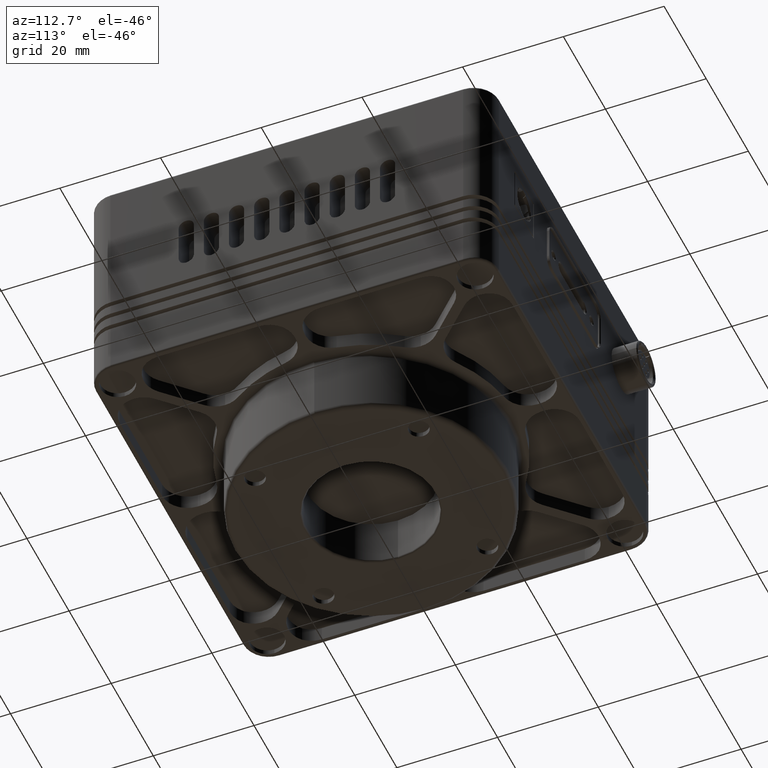
[diagram: clean part render]
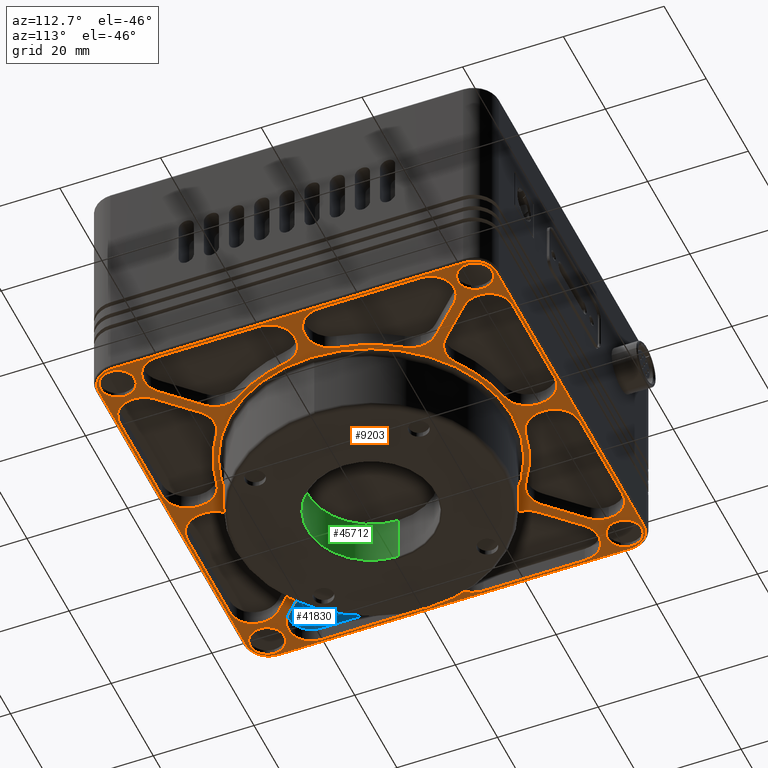
[diagram: same view with three faces highlighted in distinct colors, each labeled with its STEP entity id]
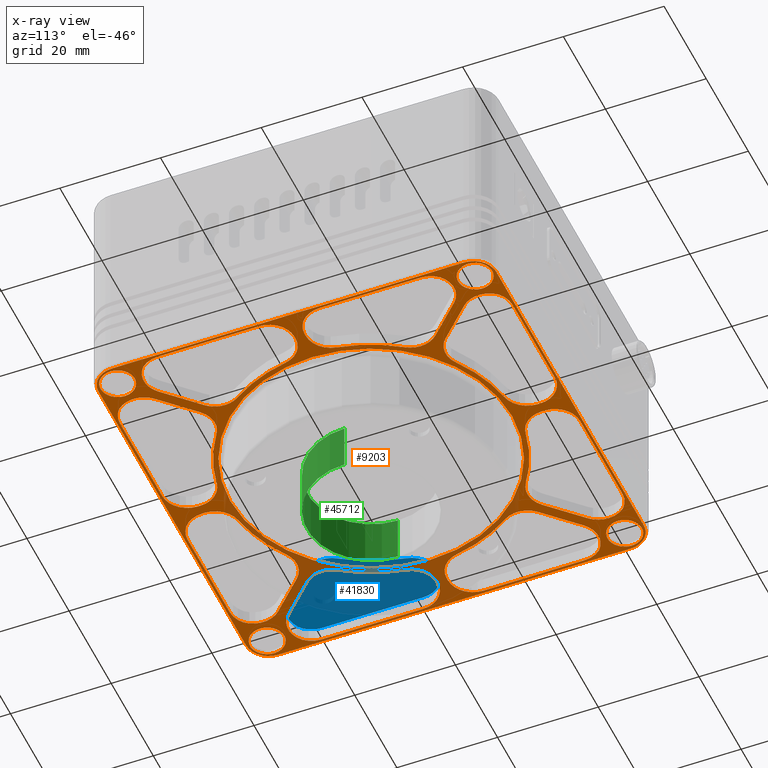
[diagram: x-ray of the same camera — body ghosted, the three highlighted faces saturated]
A machine part, auxiliary view with three faces highlighted in distinct colors.
The next image is the same camera in x-ray (body ghosted, the three faces saturated) — at least one of them is partly hidden behind the body in this view.
Their STEP definitions:

[orange] entity #9203 — the highlighted planar face has unit normal (0, 0, 1).
#63 = ORIENTED_EDGE ( 'NONE', *, *, #28494, .T. ) ;
#74 = CIRCLE ( 'NONE', #51239, 5.000000000000000888 ) ;
#76 = CARTESIAN_POINT ( 'NONE',  ( 34.00000000000000000, -6.000000000000000000, -15.80000000000000071 ) ) ;
#87 = DIRECTION ( 'NONE',  ( 0.000000000000000000, 0.000000000000000000, 1.000000000000000000 ) ) ;
#163 = ORIENTED_EDGE ( 'NONE', *, *, #18579, .T. ) ;
#227 = EDGE_CURVE ( 'NONE', #37835, #28529, #14932, .T. ) ;
#338 = CARTESIAN_POINT ( 'NONE',  ( 37.67980191184174998, 29.48919942515059844, -15.80000000000000071 ) ) ;
#521 = DIRECTION ( 'NONE',  ( 0.000000000000000000, 0.000000000000000000, -1.000000000000000000 ) ) ;
#717 = CARTESIAN_POINT ( 'NONE',  ( -37.67980191184134497, 29.48919942515104964, -15.80000000000000071 ) ) ;
#722 = ORIENTED_EDGE ( 'NONE', *, *, #18782, .T. ) ;
#759 = VERTEX_POINT ( 'NONE', #30423 ) ;
#797 = CARTESIAN_POINT ( 'NONE',  ( -23.80299514017699991, -16.56554926214974799, -15.80000000000000071 ) ) ;
#965 = ORIENTED_EDGE ( 'NONE', *, *, #41772, .T. ) ;
#973 = VERTEX_POINT ( 'NONE', #49376 ) ;
#1031 = CARTESIAN_POINT ( 'NONE',  ( 33.46640106136304382, -1.000000000000000000, -15.80000000000000071 ) ) ;
#1081 = CARTESIAN_POINT ( 'NONE',  ( 34.00000000000000000, 26.10407640085649916, -15.80000000000000071 ) ) ;
#1205 = ORIENTED_EDGE ( 'NONE', *, *, #45862, .T. ) ;
#1283 = DIRECTION ( 'NONE',  ( 1.000000000000000000, 0.000000000000000000, 0.000000000000000000 ) ) ;
#1451 = ORIENTED_EDGE ( 'NONE', *, *, #15043, .T. ) ;
#1471 = EDGE_CURVE ( 'NONE', #31392, #23264, #48621, .T. ) ;
#1674 = EDGE_CURVE ( 'NONE', #11582, #8384, #74, .T. ) ;
#1783 = CIRCLE ( 'NONE', #54645, 5.000000000000000888 ) ;
#1963 = CIRCLE ( 'NONE', #28443, 5.000000000000000888 ) ;
#2045 = CIRCLE ( 'NONE', #44400, 4.500000000000000888 ) ;
#2049 = ORIENTED_EDGE ( 'NONE', *, *, #13605, .T. ) ;
#2074 = DIRECTION ( 'NONE',  ( 0.000000000000000000, 0.000000000000000000, 1.000000000000000000 ) ) ;
#2159 = CARTESIAN_POINT ( 'NONE',  ( 39.00000000000000000, 6.000000000000000000, -15.80000000000000071 ) ) ;
#2263 = CARTESIAN_POINT ( 'NONE',  ( 27.90695981951824933, -19.42167844527845233, -15.80000000000000071 ) ) ;
#2300 = CARTESIAN_POINT ( 'NONE',  ( 0.000000000000000000, 0.000000000000000000, -15.80000000000000071 ) ) ;
#2339 = ORIENTED_EDGE ( 'NONE', *, *, #8836, .T. ) ;
#2360 = CIRCLE ( 'NONE', #26220, 5.000000000000000000 ) ;
#2456 = EDGE_CURVE ( 'NONE', #25527, #5143, #30593, .T. ) ;
#2537 = DIRECTION ( 'NONE',  ( 1.000000000000000000, 0.000000000000000000, 0.000000000000000000 ) ) ;
#2613 = EDGE_LOOP ( 'NONE', ( #965, #9081, #43648, #45739, #43400, #47048, #29167, #53471, #45392, #5119 ) ) ;
#2662 = CIRCLE ( 'NONE', #47652, 5.000000000000000888 ) ;
#2918 = DIRECTION ( 'NONE',  ( 1.000000000000000000, 0.000000000000000000, 0.000000000000000000 ) ) ;
#2983 = CIRCLE ( 'NONE', #52368, 5.000000000000000000 ) ;
#3128 = DIRECTION ( 'NONE',  ( 1.000000000000000000, 0.000000000000000000, 0.000000000000000000 ) ) ;
#3164 = DIRECTION ( 'NONE',  ( 0.000000000000000000, 0.000000000000000000, -1.000000000000000000 ) ) ;
#3330 = ORIENTED_EDGE ( 'NONE', *, *, #31186, .T. ) ;
#3340 = VERTEX_POINT ( 'NONE', #18892 ) ;
#3341 = FACE_BOUND ( 'NONE', #4502, .T. ) ;
#3472 = DIRECTION ( 'NONE',  ( 1.000000000000000000, 0.000000000000000000, 0.000000000000000000 ) ) ;
#3493 = AXIS2_PLACEMENT_3D ( 'NONE', #41555, #37695, #16692 ) ;
#3562 = DIRECTION ( 'NONE',  ( 0.000000000000000000, 0.000000000000000000, -1.000000000000000000 ) ) ;
#3570 = EDGE_CURVE ( 'NONE', #15717, #53911, #9713, .T. ) ;
#3578 = AXIS2_PLACEMENT_3D ( 'NONE', #34104, #50898, #13093 ) ;
#3780 = CARTESIAN_POINT ( 'NONE',  ( -39.00000000000000000, 0.000000000000000000, -15.80000000000000071 ) ) ;
#3856 = EDGE_CURVE ( 'NONE', #50541, #47057, #46757, .T. ) ;
#3936 = CARTESIAN_POINT ( 'NONE',  ( -38.89999999999999858, 35.50000000000000000, -15.80000000000000071 ) ) ;
#4003 = DIRECTION ( 'NONE',  ( 1.000000000000000000, 0.000000000000000000, 0.000000000000000000 ) ) ;
#4011 = CARTESIAN_POINT ( 'NONE',  ( 32.09999999999999432, -35.50000000000000000, -15.80000000000000071 ) ) ;
#4241 = DIRECTION ( 'NONE',  ( 0.000000000000000000, 0.000000000000000000, 1.000000000000000000 ) ) ;
#4293 = CARTESIAN_POINT ( 'NONE',  ( 0.7071067811865590080, -0.7071067811865670016, -15.80000000000000071 ) ) ;
#4319 = DIRECTION ( 'NONE',  ( 0.000000000000000000, 0.000000000000000000, 1.000000000000000000 ) ) ;
#4344 = VERTEX_POINT ( 'NONE', #5090 ) ;
#4443 = DIRECTION ( 'NONE',  ( -1.000000000000000000, 0.000000000000000000, 0.000000000000000000 ) ) ;
#4502 = EDGE_LOOP ( 'NONE', ( #18104, #1451, #722, #32104, #28713, #48851, #5804, #10055, #20267 ) ) ;
#4522 = DIRECTION ( 'NONE',  ( 1.000000000000000000, 0.000000000000000000, 0.000000000000000000 ) ) ;
#4617 = AXIS2_PLACEMENT_3D ( 'NONE', #21874, #29339, #5016 ) ;
#4768 = EDGE_CURVE ( 'NONE', #37710, #28593, #7253, .T. ) ;
#4779 = DIRECTION ( 'NONE',  ( 0.000000000000000000, 0.000000000000000000, -1.000000000000000000 ) ) ;
#4859 = ORIENTED_EDGE ( 'NONE', *, *, #3570, .F. ) ;
#4893 = VERTEX_POINT ( 'NONE', #14677 ) ;
#5014 = VERTEX_POINT ( 'NONE', #29571 ) ;
#5016 = DIRECTION ( 'NONE',  ( 1.000000000000000000, 0.000000000000000000, 0.000000000000000000 ) ) ;
#5021 = ORIENTED_EDGE ( 'NONE', *, *, #19421, .T. ) ;
#5090 = CARTESIAN_POINT ( 'NONE',  ( 29.48919942515095016, -37.67980191184140182, -15.80000000000000071 ) ) ;
#5092 = AXIS2_PLACEMENT_3D ( 'NONE', #11556, #7422, #41094 ) ;
#5119 = ORIENTED_EDGE ( 'NONE', *, *, #50006, .T. ) ;
#5143 = VERTEX_POINT ( 'NONE', #797 ) ;
#5161 = CARTESIAN_POINT ( 'NONE',  ( -39.00000000000000000, 6.000000000000000000, -15.80000000000000071 ) ) ;
#5171 = EDGE_CURVE ( 'NONE', #12840, #5014, #31287, .T. ) ;
#5250 = CARTESIAN_POINT ( 'NONE',  ( -33.46640106136304382, 1.000000000000000000, -15.80000000000000071 ) ) ;
#5351 = DIRECTION ( 'NONE',  ( 1.000000000000000000, 0.000000000000000000, 0.000000000000000000 ) ) ;
#5453 = CARTESIAN_POINT ( 'NONE',  ( 29.48919942515074766, 37.67980191184159366, -15.80000000000000071 ) ) ;
#5463 = ORIENTED_EDGE ( 'NONE', *, *, #53982, .T. ) ;
#5505 = CIRCLE ( 'NONE', #24902, 5.000000000000000888 ) ;
#5518 = DIRECTION ( 'NONE',  ( 0.000000000000000000, -1.000000000000000000, 0.000000000000000000 ) ) ;
#5543 = EDGE_CURVE ( 'NONE', #24377, #11465, #48024, .T. ) ;
#5615 = AXIS2_PLACEMENT_3D ( 'NONE', #37045, #52785, #2537 ) ;
#5643 = LINE ( 'NONE', #23310, #52835 ) ;
#5697 = VERTEX_POINT ( 'NONE', #14812 ) ;
#5700 = CARTESIAN_POINT ( 'NONE',  ( -33.46640106136304382, 6.000000000000000000, -15.80000000000000071 ) ) ;
#5804 = ORIENTED_EDGE ( 'NONE', *, *, #50225, .T. ) ;
#5905 = EDGE_CURVE ( 'NONE', #23264, #31392, #40074, .T. ) ;
#5973 = DIRECTION ( 'NONE',  ( -0.7071067811865515695, -0.7071067811865435759, 0.000000000000000000 ) ) ;
#6015 = VECTOR ( 'NONE', #26588, 1000.000000000000000 ) ;
#6082 = ORIENTED_EDGE ( 'NONE', *, *, #34826, .F. ) ;
#6104 = CARTESIAN_POINT ( 'NONE',  ( 25.80939751330960164, -34.29467888754695082, -15.80000000000000071 ) ) ;
#6146 = DIRECTION ( 'NONE',  ( 0.000000000000000000, 0.000000000000000000, 1.000000000000000000 ) ) ;
#6306 = ORIENTED_EDGE ( 'NONE', *, *, #51909, .T. ) ;
#6334 = VECTOR ( 'NONE', #45457, 1000.000000000000000 ) ;
#6350 = ORIENTED_EDGE ( 'NONE', *, *, #41677, .T. ) ;
#6418 = CARTESIAN_POINT ( 'NONE',  ( 26.10407640085649916, -39.00000000000000000, -15.80000000000000071 ) ) ;
#6511 = DIRECTION ( 'NONE',  ( 0.000000000000000000, 0.000000000000000000, 1.000000000000000000 ) ) ;
#6630 = CARTESIAN_POINT ( 'NONE',  ( -34.29467888754769689, -25.80939751330879872, -15.80000000000000071 ) ) ;
#6715 = DIRECTION ( 'NONE',  ( 0.000000000000000000, 0.000000000000000000, 1.000000000000000000 ) ) ;
#6762 = VERTEX_POINT ( 'NONE', #53304 ) ;
#6830 = VERTEX_POINT ( 'NONE', #15228 ) ;
#6843 = VERTEX_POINT ( 'NONE', #37030 ) ;
#6943 = CARTESIAN_POINT ( 'NONE',  ( 22.95721235121204984, 24.37142591358490051, -15.80000000000000071 ) ) ;
#6975 = VERTEX_POINT ( 'NONE', #51059 ) ;
#7017 = CIRCLE ( 'NONE', #16686, 29.00000000000000000 ) ;
#7098 = AXIS2_PLACEMENT_3D ( 'NONE', #52849, #2074, #39911 ) ;
#7113 = VERTEX_POINT ( 'NONE', #31751 ) ;
#7155 = VERTEX_POINT ( 'NONE', #52957 ) ;
#7198 = AXIS2_PLACEMENT_3D ( 'NONE', #21425, #25299, #9275 ) ;
#7253 = CIRCLE ( 'NONE', #14297, 3.400000000000000355 ) ;
#7332 = CARTESIAN_POINT ( 'NONE',  ( 34.00000000000000000, 6.000000000000000000, -15.80000000000000071 ) ) ;
#7375 = LINE ( 'NONE', #11251, #6334 ) ;
#7416 = DIRECTION ( 'NONE',  ( 1.000000000000000000, 0.000000000000000000, 0.000000000000000000 ) ) ;
#7422 = DIRECTION ( 'NONE',  ( 0.000000000000000000, 0.000000000000000000, -1.000000000000000000 ) ) ;
#7425 = AXIS2_PLACEMENT_3D ( 'NONE', #48664, #6715, #35739 ) ;
#7450 = CARTESIAN_POINT ( 'NONE',  ( 29.34493141924189885, 30.75914498161465005, -15.80000000000000071 ) ) ;
#7546 = CARTESIAN_POINT ( 'NONE',  ( -26.10407640085654890, -39.00000000000000000, -15.80000000000000071 ) ) ;
#7603 = CARTESIAN_POINT ( 'NONE',  ( -29.34493141924184911, -30.75914498161465005, -15.80000000000000071 ) ) ;
#7662 = DIRECTION ( 'NONE',  ( 1.000000000000000000, 0.000000000000000000, 0.000000000000000000 ) ) ;
#7717 = VERTEX_POINT ( 'NONE', #21640 ) ;
#7789 = CARTESIAN_POINT ( 'NONE',  ( 19.42167844527990184, -27.90695981951724747, -15.80000000000000071 ) ) ;
#7825 = CARTESIAN_POINT ( 'NONE',  ( 19.42167844527934761, 27.90695981951764892, -15.80000000000000071 ) ) ;
#7938 = DIRECTION ( 'NONE',  ( 0.000000000000000000, 0.000000000000000000, 1.000000000000000000 ) ) ;
#8013 = CIRCLE ( 'NONE', #38882, 29.00000000000000000 ) ;
#8033 = EDGE_CURVE ( 'NONE', #12918, #32075, #33177, .T. ) ;
#8163 = CIRCLE ( 'NONE', #15226, 5.000000000000000888 ) ;
#8384 = VERTEX_POINT ( 'NONE', #15440 ) ;
#8470 = DIRECTION ( 'NONE',  ( 1.000000000000000000, 0.000000000000000000, 0.000000000000000000 ) ) ;
#8531 = VERTEX_POINT ( 'NONE', #51827 ) ;
#8634 = CARTESIAN_POINT ( 'NONE',  ( -38.89999999999999858, -35.50000000000000000, -15.80000000000000071 ) ) ;
#8794 = LINE ( 'NONE', #14580, #16756 ) ;
#8836 = EDGE_CURVE ( 'NONE', #25584, #40343, #47910, .T. ) ;
#8859 = EDGE_CURVE ( 'NONE', #42611, #16319, #17964, .T. ) ;
#8950 = ORIENTED_EDGE ( 'NONE', *, *, #42994, .F. ) ;
#9081 = ORIENTED_EDGE ( 'NONE', *, *, #46820, .T. ) ;
#9101 = CIRCLE ( 'NONE', #44390, 4.999999999999997335 ) ;
#9203 = ADVANCED_FACE ( 'NONE', ( #32384, #19134, #44792, #44525, #49187, #40377, #53579, #3341, #15768, #35992, #32643, #49449, #11653, #23560 ), #11123, .F. ) ;
#9208 = AXIS2_PLACEMENT_3D ( 'NONE', #6104, #32072, #22960 ) ;
#9275 = DIRECTION ( 'NONE',  ( 1.000000000000000000, 0.000000000000000000, 0.000000000000000000 ) ) ;
#9357 = ORIENTED_EDGE ( 'NONE', *, *, #14541, .F. ) ;
#9654 = CARTESIAN_POINT ( 'NONE',  ( 1.000000000000000000, 33.46640106136304382, -15.80000000000000071 ) ) ;
#9713 = LINE ( 'NONE', #39260, #6015 ) ;
#9718 = CARTESIAN_POINT ( 'NONE',  ( -39.00000000000000000, 0.000000000000000000, -15.80000000000000071 ) ) ;
#9832 = EDGE_LOOP ( 'NONE', ( #22020, #11586 ) ) ;
#9869 = VECTOR ( 'NONE', #16435, 1000.000000000000000 ) ;
#9919 = DIRECTION ( 'NONE',  ( 0.000000000000000000, 0.000000000000000000, 1.000000000000000000 ) ) ;
#9962 = EDGE_CURVE ( 'NONE', #17001, #12918, #31163, .T. ) ;
#10026 = DIRECTION ( 'NONE',  ( 0.000000000000000000, 0.000000000000000000, 1.000000000000000000 ) ) ;
#10055 = ORIENTED_EDGE ( 'NONE', *, *, #31872, .F. ) ;
#10090 = DIRECTION ( 'NONE',  ( 1.000000000000000000, 0.000000000000000000, 0.000000000000000000 ) ) ;
#10153 = LINE ( 'NONE', #30879, #51140 ) ;
#10277 = DIRECTION ( 'NONE',  ( -1.000000000000000000, 0.000000000000000000, 0.000000000000000000 ) ) ;
#10337 = DIRECTION ( 'NONE',  ( -1.000000000000000000, 0.000000000000000000, 0.000000000000000000 ) ) ;
#10352 = CARTESIAN_POINT ( 'NONE',  ( -1.209839200164003984E-16, -1.000000000000000000, -15.80000000000000071 ) ) ;
#10450 = VERTEX_POINT ( 'NONE', #24881 ) ;
#10574 = VERTEX_POINT ( 'NONE', #22653 ) ;
#10588 = EDGE_CURVE ( 'NONE', #33868, #38212, #12064, .T. ) ;
#10610 = EDGE_CURVE ( 'NONE', #7113, #48030, #2360, .T. ) ;
#10652 = EDGE_CURVE ( 'NONE', #35120, #43773, #41148, .T. ) ;
#10671 = VECTOR ( 'NONE', #26676, 1000.000000000000114 ) ;
#11071 = ORIENTED_EDGE ( 'NONE', *, *, #33810, .F. ) ;
#11123 = PLANE ( 'NONE',  #5615 ) ;
#11201 = EDGE_CURVE ( 'NONE', #7155, #24443, #16456, .T. ) ;
#11251 = CARTESIAN_POINT ( 'NONE',  ( 39.00000000000000000, 0.000000000000000000, -15.80000000000000071 ) ) ;
#11280 = EDGE_CURVE ( 'NONE', #47928, #39128, #14947, .T. ) ;
#11300 = DIRECTION ( 'NONE',  ( 1.000000000000000000, 0.000000000000000000, 0.000000000000000000 ) ) ;
#11443 = VERTEX_POINT ( 'NONE', #33712 ) ;
#11451 = CARTESIAN_POINT ( 'NONE',  ( -35.00000000000000000, 35.00000000000000000, -15.80000000000000071 ) ) ;
#11465 = VERTEX_POINT ( 'NONE', #37310 ) ;
#11480 = LINE ( 'NONE', #49551, #52330 ) ;
#11545 = CIRCLE ( 'NONE', #16796, 4.500000000000000888 ) ;
#11556 = CARTESIAN_POINT ( 'NONE',  ( -35.50000000000000000, 35.50000000000000000, -15.80000000000000071 ) ) ;
#11582 = VERTEX_POINT ( 'NONE', #5250 ) ;
#11586 = ORIENTED_EDGE ( 'NONE', *, *, #21663, .F. ) ;
#11615 = EDGE_LOOP ( 'NONE', ( #15836, #37090 ) ) ;
#11629 = CARTESIAN_POINT ( 'NONE',  ( -1.209839200164003984E-16, -1.000000000000000000, -15.80000000000000071 ) ) ;
#11653 = FACE_BOUND ( 'NONE', #36713, .T. ) ;
#11671 = DIRECTION ( 'NONE',  ( 0.000000000000000000, 0.000000000000000000, 1.000000000000000000 ) ) ;
#11726 = EDGE_CURVE ( 'NONE', #41101, #14456, #39462, .T. ) ;
#11782 = AXIS2_PLACEMENT_3D ( 'NONE', #2300, #32163, #41209 ) ;
#11874 = CARTESIAN_POINT ( 'NONE',  ( 35.50000000000000000, -35.50000000000000000, -15.80000000000000071 ) ) ;
#11934 = CIRCLE ( 'NONE', #34902, 5.000000000000000888 ) ;
#11989 = ORIENTED_EDGE ( 'NONE', *, *, #32956, .T. ) ;
#12064 = CIRCLE ( 'NONE', #40259, 5.000000000000000888 ) ;
#12164 = CARTESIAN_POINT ( 'NONE',  ( 33.46640106136304382, 1.000000000000000000, -15.80000000000000071 ) ) ;
#12297 = CARTESIAN_POINT ( 'NONE',  ( 32.09999999999999432, 35.50000000000000000, -15.80000000000000071 ) ) ;
#12385 = CARTESIAN_POINT ( 'NONE',  ( 1.000000000000000000, -33.46640106136304382, -15.80000000000000071 ) ) ;
#12387 = CARTESIAN_POINT ( 'NONE',  ( 34.00000000000000000, 1.000000000000000000, -15.80000000000000071 ) ) ;
#12439 = CARTESIAN_POINT ( 'NONE',  ( 0.7071067811865590080, -0.7071067811865670016, -15.80000000000000071 ) ) ;
#12565 = DIRECTION ( 'NONE',  ( 0.000000000000000000, 0.000000000000000000, 1.000000000000000000 ) ) ;
#12677 = ORIENTED_EDGE ( 'NONE', *, *, #28732, .F. ) ;
#12753 = CARTESIAN_POINT ( 'NONE',  ( 30.80939751330915044, 34.29467888754739846, -15.80000000000000071 ) ) ;
#12817 = CARTESIAN_POINT ( 'NONE',  ( 6.000000000000000000, -33.46640106136304382, -15.80000000000000071 ) ) ;
#12826 = CARTESIAN_POINT ( 'NONE',  ( 35.50000000000000000, -35.50000000000000000, -15.80000000000000071 ) ) ;
#12840 = VERTEX_POINT ( 'NONE', #47018 ) ;
#12918 = VERTEX_POINT ( 'NONE', #18293 ) ;
#12930 = EDGE_CURVE ( 'NONE', #15058, #22693, #23499, .T. ) ;
#13072 = ORIENTED_EDGE ( 'NONE', *, *, #16650, .T. ) ;
#13093 = DIRECTION ( 'NONE',  ( -1.000000000000000000, 0.000000000000000000, 0.000000000000000000 ) ) ;
#13099 = DIRECTION ( 'NONE',  ( 0.000000000000000000, 0.000000000000000000, -1.000000000000000000 ) ) ;
#13204 = DIRECTION ( 'NONE',  ( 0.7071067811865460184, -0.7071067811865489050, 0.000000000000000000 ) ) ;
#13389 = AXIS2_PLACEMENT_3D ( 'NONE', #7789, #41458, #54160 ) ;
#13605 = EDGE_CURVE ( 'NONE', #34912, #49861, #39134, .T. ) ;
#13670 = CARTESIAN_POINT ( 'NONE',  ( 27.90695981951784788, 19.42167844527899945, -15.80000000000000071 ) ) ;
#13681 = VERTEX_POINT ( 'NONE', #50837 ) ;
#13797 = AXIS2_PLACEMENT_3D ( 'NONE', #24744, #53969, #4003 ) ;
#13970 = ORIENTED_EDGE ( 'NONE', *, *, #42673, .T. ) ;
#14060 = VECTOR ( 'NONE', #34642, 1000.000000000000000 ) ;
#14297 = AXIS2_PLACEMENT_3D ( 'NONE', #21889, #34598, #10277 ) ;
#14329 = CARTESIAN_POINT ( 'NONE',  ( 16.56554926215004997, 23.80299514017679741, -15.80000000000000071 ) ) ;
#14382 = CARTESIAN_POINT ( 'NONE',  ( 38.89999999999999858, 35.50000000000000000, -15.80000000000000071 ) ) ;
#14456 = VERTEX_POINT ( 'NONE', #3936 ) ;
#14515 = ORIENTED_EDGE ( 'NONE', *, *, #11280, .F. ) ;
#14541 = EDGE_CURVE ( 'NONE', #5697, #16893, #24664, .T. ) ;
#14580 = CARTESIAN_POINT ( 'NONE',  ( -35.00000000000000000, -39.50000000000000000, -15.80000000000000071 ) ) ;
#14651 = VERTEX_POINT ( 'NONE', #6943 ) ;
#14677 = CARTESIAN_POINT ( 'NONE',  ( 6.000000000000000000, 39.00000000000000000, -15.80000000000000071 ) ) ;
#14701 = ORIENTED_EDGE ( 'NONE', *, *, #50249, .T. ) ;
#14773 = ORIENTED_EDGE ( 'NONE', *, *, #50619, .T. ) ;
#14780 = LINE ( 'NONE', #44336, #32650 ) ;
#14812 = CARTESIAN_POINT ( 'NONE',  ( -26.10407640085649916, 39.00000000000000000, -15.80000000000000071 ) ) ;
#14862 = ORIENTED_EDGE ( 'NONE', *, *, #43472, .T. ) ;
#14873 = CARTESIAN_POINT ( 'NONE',  ( -6.000000000000000000, -34.00000000000000000, -15.80000000000000071 ) ) ;
#14932 = CIRCLE ( 'NONE', #22004, 4.999999999999997335 ) ;
#14940 = AXIS2_PLACEMENT_3D ( 'NONE', #54667, #50261, #4443 ) ;
#14947 = LINE ( 'NONE', #11629, #35037 ) ;
#15043 = EDGE_CURVE ( 'NONE', #32949, #20554, #2983, .T. ) ;
#15058 = VERTEX_POINT ( 'NONE', #20111 ) ;
#15109 = CARTESIAN_POINT ( 'NONE',  ( -1.000000000000000000, -34.00000000000000000, -15.80000000000000071 ) ) ;
#15119 = EDGE_LOOP ( 'NONE', ( #2049, #24905 ) ) ;
#15142 = DIRECTION ( 'NONE',  ( 1.000000000000000000, 0.000000000000000000, 0.000000000000000000 ) ) ;
#15160 = EDGE_CURVE ( 'NONE', #8384, #35120, #35633, .T. ) ;
#15190 = CIRCLE ( 'NONE', #37229, 4.999999999999997335 ) ;
#15226 = AXIS2_PLACEMENT_3D ( 'NONE', #49603, #45742, #7662 ) ;
#15228 = CARTESIAN_POINT ( 'NONE',  ( 22.95721235121265025, -24.37142591358450261, -15.80000000000000071 ) ) ;
#15295 = VECTOR ( 'NONE', #10337, 1000.000000000000000 ) ;
#15329 = ORIENTED_EDGE ( 'NONE', *, *, #41093, .T. ) ;
#15379 = DIRECTION ( 'NONE',  ( 0.000000000000000000, 0.000000000000000000, 1.000000000000000000 ) ) ;
#15385 = ORIENTED_EDGE ( 'NONE', *, *, #27833, .T. ) ;
#15440 = CARTESIAN_POINT ( 'NONE',  ( -28.54487149351550102, 5.117647058823529882, -15.80000000000000071 ) ) ;
#15548 = DIRECTION ( 'NONE',  ( 0.000000000000000000, 0.000000000000000000, 1.000000000000000000 ) ) ;
#15653 = VERTEX_POINT ( 'NONE', #17447 ) ;
#15717 = VERTEX_POINT ( 'NONE', #6418 ) ;
#15735 = CARTESIAN_POINT ( 'NONE',  ( 0.000000000000000000, 0.000000000000000000, -15.80000000000000071 ) ) ;
#15766 = ORIENTED_EDGE ( 'NONE', *, *, #44048, .T. ) ;
#15768 = FACE_BOUND ( 'NONE', #43365, .T. ) ;
#15832 = EDGE_CURVE ( 'NONE', #39038, #24712, #46133, .T. ) ;
#15836 = ORIENTED_EDGE ( 'NONE', *, *, #45620, .F. ) ;
#15868 = DIRECTION ( 'NONE',  ( 0.000000000000000000, 0.000000000000000000, -1.000000000000000000 ) ) ;
#15970 = EDGE_CURVE ( 'NONE', #28529, #10574, #9101, .T. ) ;
#15998 = CIRCLE ( 'NONE', #44235, 5.000000000000000888 ) ;
#16171 = LINE ( 'NONE', #4293, #9869 ) ;
#16237 = AXIS2_PLACEMENT_3D ( 'NONE', #52213, #13099, #35144 ) ;
#16319 = VERTEX_POINT ( 'NONE', #18710 ) ;
#16328 = CARTESIAN_POINT ( 'NONE',  ( 1.209839200164007928E-16, 1.000000000000000000, -15.80000000000000071 ) ) ;
#16344 = ORIENTED_EDGE ( 'NONE', *, *, #46739, .T. ) ;
#16354 = EDGE_CURVE ( 'NONE', #40343, #6762, #23929, .T. ) ;
#16370 = CARTESIAN_POINT ( 'NONE',  ( -34.00000000000000000, 1.000000000000000000, -15.80000000000000071 ) ) ;
#16420 = CARTESIAN_POINT ( 'NONE',  ( -34.00000000000000000, -1.000000000000000000, -15.80000000000000071 ) ) ;
#16435 = DIRECTION ( 'NONE',  ( -0.7071067811865515695, -0.7071067811865435759, 0.000000000000000000 ) ) ;
#16456 = CIRCLE ( 'NONE', #33282, 3.400000000000000355 ) ;
#16471 = DIRECTION ( 'NONE',  ( 0.000000000000000000, 0.000000000000000000, 1.000000000000000000 ) ) ;
#16482 = CARTESIAN_POINT ( 'NONE',  ( -6.000000000000000000, -33.46640106136304382, -15.80000000000000071 ) ) ;
#16502 = VECTOR ( 'NONE', #23344, 1000.000000000000000 ) ;
#16514 = ORIENTED_EDGE ( 'NONE', *, *, #50020, .T. ) ;
#16532 = ORIENTED_EDGE ( 'NONE', *, *, #1674, .T. ) ;
#16586 = LINE ( 'NONE', #16328, #54091 ) ;
#16650 = EDGE_CURVE ( 'NONE', #8531, #33737, #34578, .T. ) ;
#16675 = DIRECTION ( 'NONE',  ( 1.000000000000000000, 0.000000000000000000, 0.000000000000000000 ) ) ;
#16686 = AXIS2_PLACEMENT_3D ( 'NONE', #20197, #37055, #45596 ) ;
#16692 = DIRECTION ( 'NONE',  ( -1.000000000000000000, 0.000000000000000000, 0.000000000000000000 ) ) ;
#16756 = VECTOR ( 'NONE', #18181, 1000.000000000000000 ) ;
#16796 = AXIS2_PLACEMENT_3D ( 'NONE', #11451, #3164, #27807 ) ;
#16804 = DIRECTION ( 'NONE',  ( 0.000000000000000000, 0.000000000000000000, -1.000000000000000000 ) ) ;
#16890 = CARTESIAN_POINT ( 'NONE',  ( -16.56554926215000023, -23.80299514017679741, -15.80000000000000071 ) ) ;
#16893 = VERTEX_POINT ( 'NONE', #37382 ) ;
#16944 = DIRECTION ( 'NONE',  ( 1.000000000000000000, 0.000000000000000000, 0.000000000000000000 ) ) ;
#16967 = CIRCLE ( 'NONE', #53116, 5.000000000000000000 ) ;
#17001 = VERTEX_POINT ( 'NONE', #338 ) ;
#17081 = LINE ( 'NONE', #47181, #22490 ) ;
#17293 = AXIS2_PLACEMENT_3D ( 'NONE', #25613, #4319, #8470 ) ;
#17447 = CARTESIAN_POINT ( 'NONE',  ( -39.00000000000000000, -6.000000000000000000, -15.80000000000000071 ) ) ;
#17488 = ORIENTED_EDGE ( 'NONE', *, *, #12930, .T. ) ;
#17571 = DIRECTION ( 'NONE',  ( 0.000000000000000000, 0.000000000000000000, 1.000000000000000000 ) ) ;
#17616 = EDGE_CURVE ( 'NONE', #39975, #48378, #41765, .T. ) ;
#17627 = VERTEX_POINT ( 'NONE', #16890 ) ;
#17656 = DIRECTION ( 'NONE',  ( 1.000000000000000000, 0.000000000000000000, 0.000000000000000000 ) ) ;
#17814 = CARTESIAN_POINT ( 'NONE',  ( 23.80299514017699991, 16.56554926214974799, -15.80000000000000071 ) ) ;
#17938 = DIRECTION ( 'NONE',  ( 0.000000000000000000, 0.000000000000000000, 1.000000000000000000 ) ) ;
#17964 = CIRCLE ( 'NONE', #29444, 5.000000000000000888 ) ;
#18104 = ORIENTED_EDGE ( 'NONE', *, *, #29156, .F. ) ;
#18170 = ORIENTED_EDGE ( 'NONE', *, *, #19977, .T. ) ;
#18181 = DIRECTION ( 'NONE',  ( -1.000000000000000000, 0.000000000000000000, 0.000000000000000000 ) ) ;
#18233 = CARTESIAN_POINT ( 'NONE',  ( -5.117647058823529882, -28.54487149351550102, -15.80000000000000071 ) ) ;
#18293 = CARTESIAN_POINT ( 'NONE',  ( 30.75914498161499822, 29.34493141924154713, -15.80000000000000071 ) ) ;
#18376 = EDGE_CURVE ( 'NONE', #32075, #759, #1783, .T. ) ;
#18451 = ORIENTED_EDGE ( 'NONE', *, *, #38578, .T. ) ;
#18497 = ORIENTED_EDGE ( 'NONE', *, *, #227, .T. ) ;
#18519 = VECTOR ( 'NONE', #50717, 1000.000000000000000 ) ;
#18579 = EDGE_CURVE ( 'NONE', #37276, #30149, #23890, .T. ) ;
#18679 = EDGE_CURVE ( 'NONE', #5697, #973, #51185, .T. ) ;
#18710 = CARTESIAN_POINT ( 'NONE',  ( 26.10407640085654890, 39.00000000000000000, -15.80000000000000071 ) ) ;
#18744 = CARTESIAN_POINT ( 'NONE',  ( -26.10407640085654890, -34.00000000000000000, -15.80000000000000071 ) ) ;
#18751 = CIRCLE ( 'NONE', #4617, 5.000000000000000888 ) ;
#18762 = DIRECTION ( 'NONE',  ( 1.000000000000000000, 0.000000000000000000, 0.000000000000000000 ) ) ;
#18782 = EDGE_CURVE ( 'NONE', #20554, #17627, #8013, .T. ) ;
#18813 = AXIS2_PLACEMENT_3D ( 'NONE', #36768, #20996, #54638 ) ;
#18856 = CARTESIAN_POINT ( 'NONE',  ( 35.00000000000000000, 35.00000000000000000, -15.80000000000000071 ) ) ;
#18892 = CARTESIAN_POINT ( 'NONE',  ( -35.00000000000000000, -39.50000000000000000, -15.80000000000000071 ) ) ;
#19038 = CARTESIAN_POINT ( 'NONE',  ( -1.000000000000000000, 34.00000000000000000, -15.80000000000000071 ) ) ;
#19134 = FACE_BOUND ( 'NONE', #29234, .T. ) ;
#19284 = DIRECTION ( 'NONE',  ( 0.000000000000000000, 0.000000000000000000, 1.000000000000000000 ) ) ;
#19291 = VERTEX_POINT ( 'NONE', #12164 ) ;
#19421 = EDGE_CURVE ( 'NONE', #6975, #36987, #15998, .T. ) ;
#19524 = CARTESIAN_POINT ( 'NONE',  ( 34.29467888754815164, -25.80939751330840082, -15.80000000000000071 ) ) ;
#19569 = DIRECTION ( 'NONE',  ( 0.000000000000000000, 0.000000000000000000, 1.000000000000000000 ) ) ;
#19591 = CIRCLE ( 'NONE', #13389, 5.000000000000000888 ) ;
#19665 = DIRECTION ( 'NONE',  ( 1.000000000000000000, 4.625929269271488478E-15, 0.000000000000000000 ) ) ;
#19753 = EDGE_CURVE ( 'NONE', #47057, #14651, #5505, .T. ) ;
#19822 = VECTOR ( 'NONE', #20018, 1000.000000000000000 ) ;
#19895 = DIRECTION ( 'NONE',  ( -1.000000000000000000, 0.000000000000000000, 0.000000000000000000 ) ) ;
#19977 = EDGE_CURVE ( 'NONE', #22693, #37835, #30490, .T. ) ;
#20018 = DIRECTION ( 'NONE',  ( 0.000000000000000000, -1.000000000000000000, 0.000000000000000000 ) ) ;
#20099 = LINE ( 'NONE', #36139, #38871 ) ;
#20111 = CARTESIAN_POINT ( 'NONE',  ( 22.90695981951824933, -19.42167844527845233, -15.80000000000000071 ) ) ;
#20154 = CARTESIAN_POINT ( 'NONE',  ( 25.80939751330915044, 34.29467888754739846, -15.80000000000000071 ) ) ;
#20197 = CARTESIAN_POINT ( 'NONE',  ( 0.000000000000000000, 0.000000000000000000, -15.80000000000000071 ) ) ;
#20212 = CIRCLE ( 'NONE', #7098, 4.999999999999997335 ) ;
#20267 = ORIENTED_EDGE ( 'NONE', *, *, #10610, .T. ) ;
#20342 = CARTESIAN_POINT ( 'NONE',  ( 1.000000000000000000, 34.00000000000000000, -15.80000000000000071 ) ) ;
#20375 = ORIENTED_EDGE ( 'NONE', *, *, #15970, .T. ) ;
#20430 = DIRECTION ( 'NONE',  ( 0.000000000000000000, 0.000000000000000000, 1.000000000000000000 ) ) ;
#20435 = DIRECTION ( 'NONE',  ( 0.000000000000000000, 0.000000000000000000, 1.000000000000000000 ) ) ;
#20453 = ORIENTED_EDGE ( 'NONE', *, *, #16354, .T. ) ;
#20554 = VERTEX_POINT ( 'NONE', #18233 ) ;
#20637 = DIRECTION ( 'NONE',  ( 0.000000000000000000, 1.000000000000000000, 0.000000000000000000 ) ) ;
#20874 = CARTESIAN_POINT ( 'NONE',  ( -35.50000000000000000, -35.50000000000000000, -15.80000000000000071 ) ) ;
#20996 = DIRECTION ( 'NONE',  ( 0.000000000000000000, 0.000000000000000000, -1.000000000000000000 ) ) ;
#21094 = CARTESIAN_POINT ( 'NONE',  ( 29.34493141924235005, -30.75914498161420241, -15.80000000000000071 ) ) ;
#21102 = CARTESIAN_POINT ( 'NONE',  ( -34.00000000000000000, -26.10407640085649916, -15.80000000000000071 ) ) ;
#21142 = DIRECTION ( 'NONE',  ( 0.000000000000000000, 0.000000000000000000, 1.000000000000000000 ) ) ;
#21190 = CARTESIAN_POINT ( 'NONE',  ( -1.000000000000000000, 1.196917569575301916E-16, -15.80000000000000071 ) ) ;
#21207 = AXIS2_PLACEMENT_3D ( 'NONE', #47285, #10026, #51943 ) ;
#21425 = CARTESIAN_POINT ( 'NONE',  ( -33.46640106136304382, -6.000000000000000000, -15.80000000000000071 ) ) ;
#21428 = AXIS2_PLACEMENT_3D ( 'NONE', #18744, #19284, #43858 ) ;
#21531 = ORIENTED_EDGE ( 'NONE', *, *, #22664, .T. ) ;
#21640 = CARTESIAN_POINT ( 'NONE',  ( -22.95721235121204984, -24.37142591358490051, -15.80000000000000071 ) ) ;
#21663 = EDGE_CURVE ( 'NONE', #28593, #37710, #25647, .T. ) ;
#21721 = DIRECTION ( 'NONE',  ( 0.000000000000000000, 0.000000000000000000, 1.000000000000000000 ) ) ;
#21874 = CARTESIAN_POINT ( 'NONE',  ( -25.80939751330825160, 34.29467888754830085, -15.80000000000000071 ) ) ;
#21880 = VERTEX_POINT ( 'NONE', #7546 ) ;
#21889 = CARTESIAN_POINT ( 'NONE',  ( 35.50000000000000000, 35.50000000000000000, -15.80000000000000071 ) ) ;
#22004 = AXIS2_PLACEMENT_3D ( 'NONE', #19524, #15379, #24232 ) ;
#22020 = ORIENTED_EDGE ( 'NONE', *, *, #4768, .F. ) ;
#22090 = CARTESIAN_POINT ( 'NONE',  ( -24.37142591358439958, 22.95721235121274972, -15.80000000000000071 ) ) ;
#22309 = AXIS2_PLACEMENT_3D ( 'NONE', #32663, #11671, #48946 ) ;
#22357 = CIRCLE ( 'NONE', #53164, 4.999999999999997335 ) ;
#22490 = VECTOR ( 'NONE', #13204, 1000.000000000000114 ) ;
#22542 = CARTESIAN_POINT ( 'NONE',  ( -24.37142591358514920, -22.95721235121180115, -15.80000000000000071 ) ) ;
#22653 = CARTESIAN_POINT ( 'NONE',  ( 39.00000000000000000, -26.10407640085654890, -15.80000000000000071 ) ) ;
#22664 = EDGE_CURVE ( 'NONE', #11443, #17001, #44795, .T. ) ;
#22693 = VERTEX_POINT ( 'NONE', #32303 ) ;
#22960 = DIRECTION ( 'NONE',  ( 1.000000000000000000, 0.000000000000000000, 0.000000000000000000 ) ) ;
#22981 = LINE ( 'NONE', #9718, #25303 ) ;
#23016 = CIRCLE ( 'NONE', #53813, 5.000000000000000000 ) ;
#23086 = AXIS2_PLACEMENT_3D ( 'NONE', #20874, #24769, #41583 ) ;
#23264 = VERTEX_POINT ( 'NONE', #8634 ) ;
#23308 = CIRCLE ( 'NONE', #7425, 5.000000000000000888 ) ;
#23310 = CARTESIAN_POINT ( 'NONE',  ( 35.00000000000000000, 39.50000000000000000, -15.80000000000000071 ) ) ;
#23344 = DIRECTION ( 'NONE',  ( 1.000000000000000000, -1.209839200164005709E-16, 0.000000000000000000 ) ) ;
#23382 = EDGE_CURVE ( 'NONE', #49861, #34912, #43062, .T. ) ;
#23499 = CIRCLE ( 'NONE', #26145, 5.000000000000000888 ) ;
#23560 = FACE_OUTER_BOUND ( 'NONE', #30764, .T. ) ;
#23572 = CARTESIAN_POINT ( 'NONE',  ( -39.50000000000000000, 35.00000000000000000, -15.80000000000000071 ) ) ;
#23671 = CARTESIAN_POINT ( 'NONE',  ( -30.80939751330825160, 34.29467888754830085, -15.80000000000000071 ) ) ;
#23731 = DIRECTION ( 'NONE',  ( 0.000000000000000000, 0.000000000000000000, 1.000000000000000000 ) ) ;
#23843 = EDGE_LOOP ( 'NONE', ( #46807, #29451, #63, #13072, #47547, #14862, #11071, #25522, #5021 ) ) ;
#23890 = CIRCLE ( 'NONE', #49423, 4.499999999999997335 ) ;
#23892 = CARTESIAN_POINT ( 'NONE',  ( 34.00000000000000000, -1.000000000000000000, -15.80000000000000071 ) ) ;
#23901 = ORIENTED_EDGE ( 'NONE', *, *, #18679, .T. ) ;
#23914 = DIRECTION ( 'NONE',  ( 0.000000000000000000, 0.000000000000000000, 1.000000000000000000 ) ) ;
#23929 = CIRCLE ( 'NONE', #27497, 5.000000000000000888 ) ;
#24014 = ORIENTED_EDGE ( 'NONE', *, *, #5905, .F. ) ;
#24050 = DIRECTION ( 'NONE',  ( -1.000000000000000000, 0.000000000000000000, 0.000000000000000000 ) ) ;
#24232 = DIRECTION ( 'NONE',  ( 1.000000000000000000, 0.000000000000000000, 0.000000000000000000 ) ) ;
#24377 = VERTEX_POINT ( 'NONE', #23671 ) ;
#24443 = VERTEX_POINT ( 'NONE', #4011 ) ;
#24636 = DIRECTION ( 'NONE',  ( 1.000000000000000000, -1.209839200164005709E-16, 0.000000000000000000 ) ) ;
#24664 = LINE ( 'NONE', #50021, #34829 ) ;
#24712 = VERTEX_POINT ( 'NONE', #42576 ) ;
#24744 = CARTESIAN_POINT ( 'NONE',  ( -27.90695981951784788, -19.42167844527905274, -15.80000000000000071 ) ) ;
#24769 = DIRECTION ( 'NONE',  ( 0.000000000000000000, 0.000000000000000000, -1.000000000000000000 ) ) ;
#24817 = CARTESIAN_POINT ( 'NONE',  ( 0.000000000000000000, 0.000000000000000000, -15.80000000000000071 ) ) ;
#24881 = CARTESIAN_POINT ( 'NONE',  ( 39.50000000000000000, 35.00000000000000000, -15.80000000000000071 ) ) ;
#24902 = AXIS2_PLACEMENT_3D ( 'NONE', #7825, #45907, #49504 ) ;
#24905 = ORIENTED_EDGE ( 'NONE', *, *, #23382, .T. ) ;
#24934 = AXIS2_PLACEMENT_3D ( 'NONE', #11874, #3562, #24050 ) ;
#24944 = CIRCLE ( 'NONE', #22309, 4.999999999999999112 ) ;
#24964 = AXIS2_PLACEMENT_3D ( 'NONE', #21102, #87, #16944 ) ;
#24998 = DIRECTION ( 'NONE',  ( 1.000000000000000000, -1.209839200164005709E-16, 0.000000000000000000 ) ) ;
#25037 = CARTESIAN_POINT ( 'NONE',  ( -29.48919942515070147, -37.67980191184165051, -15.80000000000000071 ) ) ;
#25156 = CARTESIAN_POINT ( 'NONE',  ( 24.37142591358514920, 22.95721235121175141, -15.80000000000000071 ) ) ;
#25299 = DIRECTION ( 'NONE',  ( 0.000000000000000000, 0.000000000000000000, 1.000000000000000000 ) ) ;
#25303 = VECTOR ( 'NONE', #26318, 1000.000000000000000 ) ;
#25316 = CARTESIAN_POINT ( 'NONE',  ( -25.80939751330915044, -34.29467888754739846, -15.80000000000000071 ) ) ;
#25402 = VERTEX_POINT ( 'NONE', #16420 ) ;
#25421 = AXIS2_PLACEMENT_3D ( 'NONE', #1081, #17938, #43342 ) ;
#25493 = ORIENTED_EDGE ( 'NONE', *, *, #18376, .T. ) ;
#25522 = ORIENTED_EDGE ( 'NONE', *, *, #46090, .T. ) ;
#25527 = VERTEX_POINT ( 'NONE', #22542 ) ;
#25532 = CARTESIAN_POINT ( 'NONE',  ( -6.000000000000000000, 34.00000000000000000, -15.80000000000000071 ) ) ;
#25584 = VERTEX_POINT ( 'NONE', #47083 ) ;
#25613 = CARTESIAN_POINT ( 'NONE',  ( -19.42167844527930143, -27.90695981951764892, -15.80000000000000071 ) ) ;
#25631 = LINE ( 'NONE', #21190, #18519 ) ;
#25647 = CIRCLE ( 'NONE', #3578, 3.400000000000000355 ) ;
#25664 = AXIS2_PLACEMENT_3D ( 'NONE', #35064, #521, #42790 ) ;
#25801 = CARTESIAN_POINT ( 'NONE',  ( 0.7071067811872170372, 0.7071067811872139286, -15.80000000000000071 ) ) ;
#26133 = DIRECTION ( 'NONE',  ( 1.000000000000000000, 0.000000000000000000, 0.000000000000000000 ) ) ;
#26145 = AXIS2_PLACEMENT_3D ( 'NONE', #2263, #6146, #35981 ) ;
#26220 = AXIS2_PLACEMENT_3D ( 'NONE', #14873, #19569, #18762 ) ;
#26253 = CARTESIAN_POINT ( 'NONE',  ( -6.000000000000000000, 33.46640106136304382, -15.80000000000000071 ) ) ;
#26318 = DIRECTION ( 'NONE',  ( 0.000000000000000000, 1.000000000000000000, 0.000000000000000000 ) ) ;
#26491 = VERTEX_POINT ( 'NONE', #28651 ) ;
#26541 = CARTESIAN_POINT ( 'NONE',  ( 34.00000000000000000, -26.10407640085654890, -15.80000000000000071 ) ) ;
#26588 = DIRECTION ( 'NONE',  ( -1.000000000000000000, 0.000000000000000000, 0.000000000000000000 ) ) ;
#26676 = DIRECTION ( 'NONE',  ( 0.7071067811865460184, -0.7071067811865489050, 0.000000000000000000 ) ) ;
#26746 = DIRECTION ( 'NONE',  ( 0.000000000000000000, 1.000000000000000000, 0.000000000000000000 ) ) ;
#26824 = EDGE_LOOP ( 'NONE', ( #32529, #16532, #31116, #29482, #31198, #2339, #20453, #6082, #29984 ) ) ;
#27289 = ORIENTED_EDGE ( 'NONE', *, *, #5171, .T. ) ;
#27432 = VECTOR ( 'NONE', #37049, 1000.000000000000000 ) ;
#27497 = AXIS2_PLACEMENT_3D ( 'NONE', #31976, #48501, #48231 ) ;
#27621 = VECTOR ( 'NONE', #42590, 1000.000000000000000 ) ;
#27628 = VECTOR ( 'NONE', #42534, 1000.000000000000000 ) ;
#27762 = EDGE_CURVE ( 'NONE', #53913, #37774, #2662, .T. ) ;
#27807 = DIRECTION ( 'NONE',  ( 1.000000000000000000, 0.000000000000000000, 0.000000000000000000 ) ) ;
#27833 = EDGE_CURVE ( 'NONE', #47928, #52304, #20212, .T. ) ;
#28122 = EDGE_CURVE ( 'NONE', #41169, #16893, #23016, .T. ) ;
#28147 = EDGE_CURVE ( 'NONE', #40017, #14651, #47304, .T. ) ;
#28207 = CARTESIAN_POINT ( 'NONE',  ( 28.00000000000000000, 0.000000000000000000, -15.80000000000000071 ) ) ;
#28237 = EDGE_CURVE ( 'NONE', #45911, #37399, #5643, .T. ) ;
#28412 = EDGE_CURVE ( 'NONE', #31231, #41572, #7017, .T. ) ;
#28443 = AXIS2_PLACEMENT_3D ( 'NONE', #45477, #41068, #53734 ) ;
#28494 = EDGE_CURVE ( 'NONE', #5143, #8531, #44922, .T. ) ;
#28503 = DIRECTION ( 'NONE',  ( 1.000000000000000000, -1.209839200164005709E-16, 0.000000000000000000 ) ) ;
#28529 = VERTEX_POINT ( 'NONE', #35114 ) ;
#28593 = VERTEX_POINT ( 'NONE', #14382 ) ;
#28651 = CARTESIAN_POINT ( 'NONE',  ( -22.95721235121110126, 24.37142591358560040, -15.80000000000000071 ) ) ;
#28713 = ORIENTED_EDGE ( 'NONE', *, *, #38863, .T. ) ;
#28732 = EDGE_CURVE ( 'NONE', #41169, #33251, #25631, .T. ) ;
#28875 = DIRECTION ( 'NONE',  ( 1.000000000000000000, 0.000000000000000000, 0.000000000000000000 ) ) ;
#28878 = LINE ( 'NONE', #33017, #39293 ) ;
#28921 = ORIENTED_EDGE ( 'NONE', *, *, #45267, .T. ) ;
#29007 = CARTESIAN_POINT ( 'NONE',  ( 6.000000000000000000, 33.46640106136304382, -15.80000000000000071 ) ) ;
#29077 = DIRECTION ( 'NONE',  ( 1.000000000000000000, 0.000000000000000000, 0.000000000000000000 ) ) ;
#29156 = EDGE_CURVE ( 'NONE', #32949, #48030, #54661, .T. ) ;
#29167 = ORIENTED_EDGE ( 'NONE', *, *, #33379, .T. ) ;
#29234 = EDGE_LOOP ( 'NONE', ( #34293, #28921, #31874, #5463, #45509, #50009, #4859, #3330, #6306 ) ) ;
#29339 = DIRECTION ( 'NONE',  ( 0.000000000000000000, 0.000000000000000000, 1.000000000000000000 ) ) ;
#29444 = AXIS2_PLACEMENT_3D ( 'NONE', #33592, #21142, #3472 ) ;
#29451 = ORIENTED_EDGE ( 'NONE', *, *, #2456, .T. ) ;
#29482 = ORIENTED_EDGE ( 'NONE', *, *, #10652, .T. ) ;
#29517 = CARTESIAN_POINT ( 'NONE',  ( 39.50000000000000000, -35.00000000000000000, -15.80000000000000071 ) ) ;
#29519 = ORIENTED_EDGE ( 'NONE', *, *, #38344, .T. ) ;
#29571 = CARTESIAN_POINT ( 'NONE',  ( -5.117647058823529882, 28.54487149351555075, -15.80000000000000071 ) ) ;
#29591 = VERTEX_POINT ( 'NONE', #53526 ) ;
#29639 = VERTEX_POINT ( 'NONE', #12387 ) ;
#29841 = CARTESIAN_POINT ( 'NONE',  ( 0.000000000000000000, 0.000000000000000000, -15.80000000000000071 ) ) ;
#29984 = ORIENTED_EDGE ( 'NONE', *, *, #10588, .T. ) ;
#30149 = VERTEX_POINT ( 'NONE', #50675 ) ;
#30288 = VERTEX_POINT ( 'NONE', #23572 ) ;
#30423 = CARTESIAN_POINT ( 'NONE',  ( 22.90695981951784788, 19.42167844527899945, -15.80000000000000071 ) ) ;
#30490 = LINE ( 'NONE', #25801, #38117 ) ;
#30542 = DIRECTION ( 'NONE',  ( 1.000000000000000000, 0.000000000000000000, 0.000000000000000000 ) ) ;
#30593 = CIRCLE ( 'NONE', #13797, 5.000000000000000888 ) ;
#30764 = EDGE_LOOP ( 'NONE', ( #13970, #35731, #52632, #29519, #11989, #163, #15766, #6350 ) ) ;
#30810 = CARTESIAN_POINT ( 'NONE',  ( 35.00000000000000000, -35.00000000000000000, -15.80000000000000071 ) ) ;
#30833 = DIRECTION ( 'NONE',  ( 1.000000000000000000, 0.000000000000000000, 0.000000000000000000 ) ) ;
#30879 = CARTESIAN_POINT ( 'NONE',  ( -39.50000000000000000, 35.00000000000000000, -15.80000000000000071 ) ) ;
#31014 = DIRECTION ( 'NONE',  ( 0.000000000000000000, 0.000000000000000000, 1.000000000000000000 ) ) ;
#31116 = ORIENTED_EDGE ( 'NONE', *, *, #15160, .T. ) ;
#31124 = CARTESIAN_POINT ( 'NONE',  ( -32.09999999999999432, -35.50000000000000000, -15.80000000000000071 ) ) ;
#31163 = CIRCLE ( 'NONE', #49582, 4.999999999999997335 ) ;
#31186 = EDGE_CURVE ( 'NONE', #15717, #4344, #1963, .T. ) ;
#31198 = ORIENTED_EDGE ( 'NONE', *, *, #43156, .F. ) ;
#31231 = VERTEX_POINT ( 'NONE', #38822 ) ;
#31287 = CIRCLE ( 'NONE', #41793, 29.00000000000000000 ) ;
#31369 = LINE ( 'NONE', #48164, #10671 ) ;
#31392 = VERTEX_POINT ( 'NONE', #31124 ) ;
#31751 = CARTESIAN_POINT ( 'NONE',  ( -6.000000000000000000, -39.00000000000000000, -15.80000000000000071 ) ) ;
#31872 = EDGE_CURVE ( 'NONE', #7113, #21880, #48410, .T. ) ;
#31874 = ORIENTED_EDGE ( 'NONE', *, *, #28412, .T. ) ;
#31961 = CARTESIAN_POINT ( 'NONE',  ( -35.00000000000000000, -35.00000000000000000, -15.80000000000000071 ) ) ;
#31976 = CARTESIAN_POINT ( 'NONE',  ( -34.00000000000000000, 26.10407640085654890, -15.80000000000000071 ) ) ;
#32072 = DIRECTION ( 'NONE',  ( 0.000000000000000000, 0.000000000000000000, 1.000000000000000000 ) ) ;
#32075 = VERTEX_POINT ( 'NONE', #25156 ) ;
#32104 = ORIENTED_EDGE ( 'NONE', *, *, #53659, .T. ) ;
#32163 = DIRECTION ( 'NONE',  ( 0.000000000000000000, 0.000000000000000000, 1.000000000000000000 ) ) ;
#32270 = VECTOR ( 'NONE', #20637, 1000.000000000000000 ) ;
#32303 = CARTESIAN_POINT ( 'NONE',  ( 24.37142591358550092, -22.95721235121120074, -15.80000000000000071 ) ) ;
#32384 = FACE_BOUND ( 'NONE', #36407, .T. ) ;
#32397 = ORIENTED_EDGE ( 'NONE', *, *, #15832, .T. ) ;
#32431 = CARTESIAN_POINT ( 'NONE',  ( -26.10407640085649916, 34.00000000000000000, -15.80000000000000071 ) ) ;
#32529 = ORIENTED_EDGE ( 'NONE', *, *, #50643, .T. ) ;
#32571 = DIRECTION ( 'NONE',  ( 1.000000000000000000, 0.000000000000000000, 0.000000000000000000 ) ) ;
#32643 = FACE_BOUND ( 'NONE', #11615, .T. ) ;
#32650 = VECTOR ( 'NONE', #5973, 1000.000000000000000 ) ;
#32663 = CARTESIAN_POINT ( 'NONE',  ( 6.000000000000000000, 34.00000000000000000, -15.80000000000000071 ) ) ;
#32847 = AXIS2_PLACEMENT_3D ( 'NONE', #7332, #9919, #35055 ) ;
#32949 = VERTEX_POINT ( 'NONE', #49011 ) ;
#32956 = EDGE_CURVE ( 'NONE', #10450, #37276, #40189, .T. ) ;
#33017 = CARTESIAN_POINT ( 'NONE',  ( 0.000000000000000000, 39.00000000000000000, -15.80000000000000071 ) ) ;
#33079 = CARTESIAN_POINT ( 'NONE',  ( -33.46640106136304382, -1.000000000000000000, -15.80000000000000071 ) ) ;
#33177 = LINE ( 'NONE', #12439, #27628 ) ;
#33249 = AXIS2_PLACEMENT_3D ( 'NONE', #41627, #7938, #7416 ) ;
#33251 = VERTEX_POINT ( 'NONE', #53538 ) ;
#33282 = AXIS2_PLACEMENT_3D ( 'NONE', #12826, #48358, #43697 ) ;
#33347 = DIRECTION ( 'NONE',  ( 1.000000000000000000, 0.000000000000000000, 0.000000000000000000 ) ) ;
#33379 = EDGE_CURVE ( 'NONE', #52699, #42611, #11934, .T. ) ;
#33592 = CARTESIAN_POINT ( 'NONE',  ( 26.10407640085654890, 34.00000000000000000, -15.80000000000000071 ) ) ;
#33642 = CIRCLE ( 'NONE', #53890, 5.000000000000000888 ) ;
#33712 = CARTESIAN_POINT ( 'NONE',  ( 39.00000000000000000, 26.10407640085649916, -15.80000000000000071 ) ) ;
#33737 = VERTEX_POINT ( 'NONE', #33079 ) ;
#33810 = EDGE_CURVE ( 'NONE', #6843, #15653, #48819, .T. ) ;
#33812 = DIRECTION ( 'NONE',  ( 1.000000000000000000, 0.000000000000000000, 0.000000000000000000 ) ) ;
#33868 = VERTEX_POINT ( 'NONE', #5161 ) ;
#34078 = CIRCLE ( 'NONE', #17293, 5.000000000000000888 ) ;
#34102 = DIRECTION ( 'NONE',  ( 0.000000000000000000, 0.000000000000000000, 1.000000000000000000 ) ) ;
#34104 = CARTESIAN_POINT ( 'NONE',  ( 35.50000000000000000, 35.50000000000000000, -15.80000000000000071 ) ) ;
#34146 = EDGE_CURVE ( 'NONE', #4893, #16319, #28878, .T. ) ;
#34277 = DIRECTION ( 'NONE',  ( 0.000000000000000000, 0.000000000000000000, 1.000000000000000000 ) ) ;
#34293 = ORIENTED_EDGE ( 'NONE', *, *, #52038, .F. ) ;
#34383 = CARTESIAN_POINT ( 'NONE',  ( 27.90695981951784788, 19.42167844527899945, -15.80000000000000071 ) ) ;
#34427 = CIRCLE ( 'NONE', #3493, 3.400000000000000355 ) ;
#34433 = ORIENTED_EDGE ( 'NONE', *, *, #8033, .T. ) ;
#34578 = CIRCLE ( 'NONE', #7198, 5.000000000000000888 ) ;
#34598 = DIRECTION ( 'NONE',  ( 0.000000000000000000, 0.000000000000000000, -1.000000000000000000 ) ) ;
#34638 = CIRCLE ( 'NONE', #24934, 3.400000000000000355 ) ;
#34642 = DIRECTION ( 'NONE',  ( -0.7071067811865515695, -0.7071067811865435759, 0.000000000000000000 ) ) ;
#34808 = DIRECTION ( 'NONE',  ( -1.000000000000000000, 0.000000000000000000, 0.000000000000000000 ) ) ;
#34826 = EDGE_CURVE ( 'NONE', #33868, #6762, #22981, .T. ) ;
#34829 = VECTOR ( 'NONE', #29077, 1000.000000000000000 ) ;
#34902 = AXIS2_PLACEMENT_3D ( 'NONE', #20154, #20430, #37005 ) ;
#34912 = VERTEX_POINT ( 'NONE', #28207 ) ;
#35037 = VECTOR ( 'NONE', #28503, 1000.000000000000000 ) ;
#35055 = DIRECTION ( 'NONE',  ( 1.000000000000000000, 0.000000000000000000, 0.000000000000000000 ) ) ;
#35064 = CARTESIAN_POINT ( 'NONE',  ( 0.000000000000000000, 0.000000000000000000, -15.80000000000000071 ) ) ;
#35114 = CARTESIAN_POINT ( 'NONE',  ( 37.67980191184194894, -29.48919942515039949, -15.80000000000000071 ) ) ;
#35120 = VERTEX_POINT ( 'NONE', #46097 ) ;
#35144 = DIRECTION ( 'NONE',  ( -1.000000000000000000, 0.000000000000000000, 0.000000000000000000 ) ) ;
#35159 = AXIS2_PLACEMENT_3D ( 'NONE', #44222, #31014, #39281 ) ;
#35304 = ORIENTED_EDGE ( 'NONE', *, *, #48567, .T. ) ;
#35324 = CARTESIAN_POINT ( 'NONE',  ( -35.00000000000000000, 39.50000000000000000, -15.80000000000000071 ) ) ;
#35487 = LINE ( 'NONE', #10352, #16502 ) ;
#35515 = CIRCLE ( 'NONE', #21428, 5.000000000000000888 ) ;
#35633 = CIRCLE ( 'NONE', #35676, 29.00000000000000000 ) ;
#35676 = AXIS2_PLACEMENT_3D ( 'NONE', #24817, #41091, #37232 ) ;
#35731 = ORIENTED_EDGE ( 'NONE', *, *, #44685, .T. ) ;
#35739 = DIRECTION ( 'NONE',  ( 1.000000000000000000, 0.000000000000000000, 0.000000000000000000 ) ) ;
#35792 = CARTESIAN_POINT ( 'NONE',  ( 1.000000000000000000, -34.00000000000000000, -15.80000000000000071 ) ) ;
#35981 = DIRECTION ( 'NONE',  ( 1.000000000000000000, 0.000000000000000000, 0.000000000000000000 ) ) ;
#35992 = FACE_BOUND ( 'NONE', #53115, .T. ) ;
#36074 = DIRECTION ( 'NONE',  ( 1.000000000000000000, 0.000000000000000000, 0.000000000000000000 ) ) ;
#36139 = CARTESIAN_POINT ( 'NONE',  ( 0.7071067811872170372, 0.7071067811872139286, -15.80000000000000071 ) ) ;
#36407 = EDGE_LOOP ( 'NONE', ( #34433, #25493, #51686, #32397, #14773, #35304, #1205, #47247, #21531, #44470 ) ) ;
#36713 = EDGE_LOOP ( 'NONE', ( #8950, #54186 ) ) ;
#36768 = CARTESIAN_POINT ( 'NONE',  ( 0.000000000000000000, 0.000000000000000000, -15.80000000000000071 ) ) ;
#36836 = EDGE_CURVE ( 'NONE', #25402, #33737, #35487, .T. ) ;
#36971 = DIRECTION ( 'NONE',  ( 0.000000000000000000, 0.000000000000000000, 1.000000000000000000 ) ) ;
#36987 = VERTEX_POINT ( 'NONE', #50791 ) ;
#37005 = DIRECTION ( 'NONE',  ( 1.000000000000000000, 0.000000000000000000, 0.000000000000000000 ) ) ;
#37030 = CARTESIAN_POINT ( 'NONE',  ( -39.00000000000000000, -26.10407640085649916, -15.80000000000000071 ) ) ;
#37045 = CARTESIAN_POINT ( 'NONE',  ( 0.000000000000000000, 0.000000000000000000, -15.80000000000000071 ) ) ;
#37049 = DIRECTION ( 'NONE',  ( -1.196917569575299944E-16, -1.000000000000000000, 0.000000000000000000 ) ) ;
#37055 = DIRECTION ( 'NONE',  ( 0.000000000000000000, 0.000000000000000000, -1.000000000000000000 ) ) ;
#37090 = ORIENTED_EDGE ( 'NONE', *, *, #11201, .F. ) ;
#37152 = DIRECTION ( 'NONE',  ( -9.575340556602408675E-17, -1.000000000000000000, 0.000000000000000000 ) ) ;
#37185 = DIRECTION ( 'NONE',  ( 1.000000000000000000, 0.000000000000000000, 0.000000000000000000 ) ) ;
#37229 = AXIS2_PLACEMENT_3D ( 'NONE', #76, #42069, #4522 ) ;
#37232 = DIRECTION ( 'NONE',  ( -1.000000000000000000, 0.000000000000000000, 0.000000000000000000 ) ) ;
#37241 = CARTESIAN_POINT ( 'NONE',  ( 35.00000000000000000, 39.50000000000000000, -15.80000000000000071 ) ) ;
#37276 = VERTEX_POINT ( 'NONE', #29517 ) ;
#37310 = CARTESIAN_POINT ( 'NONE',  ( -29.34493141924100001, 30.75914498161555244, -15.80000000000000071 ) ) ;
#37341 = AXIS2_PLACEMENT_3D ( 'NONE', #29007, #20435, #53812 ) ;
#37382 = CARTESIAN_POINT ( 'NONE',  ( -6.000000000000000000, 39.00000000000000000, -15.80000000000000071 ) ) ;
#37399 = VERTEX_POINT ( 'NONE', #37241 ) ;
#37695 = DIRECTION ( 'NONE',  ( 0.000000000000000000, 0.000000000000000000, -1.000000000000000000 ) ) ;
#37710 = VERTEX_POINT ( 'NONE', #12297 ) ;
#37774 = VERTEX_POINT ( 'NONE', #25037 ) ;
#37835 = VERTEX_POINT ( 'NONE', #47089 ) ;
#37984 = VERTEX_POINT ( 'NONE', #45108 ) ;
#38090 = DIRECTION ( 'NONE',  ( 1.000000000000000000, 0.000000000000000000, 0.000000000000000000 ) ) ;
#38117 = VECTOR ( 'NONE', #47290, 1000.000000000000114 ) ;
#38187 = AXIS2_PLACEMENT_3D ( 'NONE', #15735, #16804, #19895 ) ;
#38212 = VERTEX_POINT ( 'NONE', #16370 ) ;
#38344 = EDGE_CURVE ( 'NONE', #37399, #10450, #53619, .T. ) ;
#38446 = CARTESIAN_POINT ( 'NONE',  ( 1.000000000000000000, -9.575340556602400047E-17, -15.80000000000000071 ) ) ;
#38508 = CIRCLE ( 'NONE', #54367, 4.999999999999999112 ) ;
#38578 = EDGE_CURVE ( 'NONE', #26491, #12840, #33642, .T. ) ;
#38649 = EDGE_CURVE ( 'NONE', #37984, #10574, #7375, .T. ) ;
#38822 = CARTESIAN_POINT ( 'NONE',  ( 16.56554926215049761, -23.80299514017649898, -15.80000000000000071 ) ) ;
#38845 = CARTESIAN_POINT ( 'NONE',  ( -25.80939751330825160, 34.29467888754830085, -15.80000000000000071 ) ) ;
#38863 = EDGE_CURVE ( 'NONE', #7717, #53913, #16171, .T. ) ;
#38871 = VECTOR ( 'NONE', #53485, 1000.000000000000114 ) ;
#38882 = AXIS2_PLACEMENT_3D ( 'NONE', #46179, #4779, #46724 ) ;
#39038 = VERTEX_POINT ( 'NONE', #17814 ) ;
#39072 = DIRECTION ( 'NONE',  ( 0.000000000000000000, 0.000000000000000000, 1.000000000000000000 ) ) ;
#39128 = VERTEX_POINT ( 'NONE', #23892 ) ;
#39134 = CIRCLE ( 'NONE', #11782, 28.00000000000000000 ) ;
#39260 = CARTESIAN_POINT ( 'NONE',  ( 0.000000000000000000, -39.00000000000000000, -15.80000000000000071 ) ) ;
#39281 = DIRECTION ( 'NONE',  ( 1.000000000000000000, 0.000000000000000000, 0.000000000000000000 ) ) ;
#39293 = VECTOR ( 'NONE', #36074, 1000.000000000000000 ) ;
#39462 = CIRCLE ( 'NONE', #5092, 3.400000000000000355 ) ;
#39669 = CARTESIAN_POINT ( 'NONE',  ( 5.117647058823529882, -28.54487149351550102, -15.80000000000000071 ) ) ;
#39879 = DIRECTION ( 'NONE',  ( 1.000000000000000000, 0.000000000000000000, 0.000000000000000000 ) ) ;
#39911 = DIRECTION ( 'NONE',  ( 1.000000000000000000, 0.000000000000000000, 0.000000000000000000 ) ) ;
#39975 = VERTEX_POINT ( 'NONE', #12385 ) ;
#39977 = CIRCLE ( 'NONE', #37341, 4.999999999999999112 ) ;
#40002 = AXIS2_PLACEMENT_3D ( 'NONE', #41852, #46261, #37185 ) ;
#40017 = VERTEX_POINT ( 'NONE', #7450 ) ;
#40074 = CIRCLE ( 'NONE', #16237, 3.400000000000000355 ) ;
#40189 = LINE ( 'NONE', #41005, #19822 ) ;
#40257 = CARTESIAN_POINT ( 'NONE',  ( 28.54487149351550102, -5.117647058823529882, -15.80000000000000071 ) ) ;
#40259 = AXIS2_PLACEMENT_3D ( 'NONE', #48279, #23731, #15142 ) ;
#40285 = EDGE_CURVE ( 'NONE', #48378, #53911, #45122, .T. ) ;
#40343 = VERTEX_POINT ( 'NONE', #717 ) ;
#40377 = FACE_BOUND ( 'NONE', #23843, .T. ) ;
#40842 = VECTOR ( 'NONE', #24998, 1000.000000000000000 ) ;
#40965 = CIRCLE ( 'NONE', #9208, 5.000000000000000888 ) ;
#41005 = CARTESIAN_POINT ( 'NONE',  ( 39.50000000000000000, -35.00000000000000000, -15.80000000000000071 ) ) ;
#41009 = CARTESIAN_POINT ( 'NONE',  ( 33.46640106136304382, 6.000000000000000000, -15.80000000000000071 ) ) ;
#41068 = DIRECTION ( 'NONE',  ( 0.000000000000000000, 0.000000000000000000, 1.000000000000000000 ) ) ;
#41091 = DIRECTION ( 'NONE',  ( 0.000000000000000000, 0.000000000000000000, -1.000000000000000000 ) ) ;
#41093 = EDGE_CURVE ( 'NONE', #5014, #33251, #16967, .T. ) ;
#41094 = DIRECTION ( 'NONE',  ( -1.000000000000000000, 0.000000000000000000, 0.000000000000000000 ) ) ;
#41101 = VERTEX_POINT ( 'NONE', #50776 ) ;
#41148 = CIRCLE ( 'NONE', #33249, 5.000000000000000888 ) ;
#41169 = VERTEX_POINT ( 'NONE', #19038 ) ;
#41209 = DIRECTION ( 'NONE',  ( 1.000000000000000000, 0.000000000000000000, 0.000000000000000000 ) ) ;
#41458 = DIRECTION ( 'NONE',  ( 0.000000000000000000, 0.000000000000000000, 1.000000000000000000 ) ) ;
#41555 = CARTESIAN_POINT ( 'NONE',  ( -35.50000000000000000, 35.50000000000000000, -15.80000000000000071 ) ) ;
#41572 = VERTEX_POINT ( 'NONE', #39669 ) ;
#41583 = DIRECTION ( 'NONE',  ( -1.000000000000000000, 0.000000000000000000, 0.000000000000000000 ) ) ;
#41627 = CARTESIAN_POINT ( 'NONE',  ( -27.90695981951714799, 19.42167844528005105, -15.80000000000000071 ) ) ;
#41677 = EDGE_CURVE ( 'NONE', #3340, #13681, #2045, .T. ) ;
#41694 = CIRCLE ( 'NONE', #24964, 5.000000000000000888 ) ;
#41765 = LINE ( 'NONE', #38446, #27621 ) ;
#41772 = EDGE_CURVE ( 'NONE', #49208, #54359, #11480, .T. ) ;
#41793 = AXIS2_PLACEMENT_3D ( 'NONE', #29841, #46643, #34808 ) ;
#41852 = CARTESIAN_POINT ( 'NONE',  ( -34.29467888754680160, 25.80939751330970111, -15.80000000000000071 ) ) ;
#42069 = DIRECTION ( 'NONE',  ( 0.000000000000000000, 0.000000000000000000, 1.000000000000000000 ) ) ;
#42229 = DIRECTION ( 'NONE',  ( 0.000000000000000000, 0.000000000000000000, 1.000000000000000000 ) ) ;
#42534 = DIRECTION ( 'NONE',  ( -0.7071067811865515695, -0.7071067811865435759, 0.000000000000000000 ) ) ;
#42576 = CARTESIAN_POINT ( 'NONE',  ( 28.54487149351555075, 5.117647058823529882, -15.80000000000000071 ) ) ;
#42590 = DIRECTION ( 'NONE',  ( -9.575340556602408675E-17, -1.000000000000000000, 0.000000000000000000 ) ) ;
#42611 = VERTEX_POINT ( 'NONE', #5453 ) ;
#42673 = EDGE_CURVE ( 'NONE', #13681, #30288, #10153, .T. ) ;
#42790 = DIRECTION ( 'NONE',  ( -1.000000000000000000, 0.000000000000000000, 0.000000000000000000 ) ) ;
#42960 = DIRECTION ( 'NONE',  ( 1.000000000000000000, 0.000000000000000000, 0.000000000000000000 ) ) ;
#42994 = EDGE_CURVE ( 'NONE', #14456, #41101, #34427, .T. ) ;
#43041 = EDGE_CURVE ( 'NONE', #759, #39038, #52052, .T. ) ;
#43062 = CIRCLE ( 'NONE', #35159, 28.00000000000000000 ) ;
#43156 = EDGE_CURVE ( 'NONE', #25584, #43773, #31369, .T. ) ;
#43342 = DIRECTION ( 'NONE',  ( 1.000000000000000000, 0.000000000000000000, 0.000000000000000000 ) ) ;
#43359 = ORIENTED_EDGE ( 'NONE', *, *, #1471, .F. ) ;
#43365 = EDGE_LOOP ( 'NONE', ( #14515, #15385, #16344, #14701, #17488, #18170, #18497, #20375, #49639, #50319 ) ) ;
#43400 = ORIENTED_EDGE ( 'NONE', *, *, #28147, .F. ) ;
#43453 = CARTESIAN_POINT ( 'NONE',  ( -0.7071067811865390240, 0.7071067811865470176, -15.80000000000000071 ) ) ;
#43472 = EDGE_CURVE ( 'NONE', #25402, #15653, #45864, .T. ) ;
#43524 = CIRCLE ( 'NONE', #38187, 29.00000000000000000 ) ;
#43613 = CARTESIAN_POINT ( 'NONE',  ( 39.00000000000000000, 0.000000000000000000, -15.80000000000000071 ) ) ;
#43648 = ORIENTED_EDGE ( 'NONE', *, *, #3856, .T. ) ;
#43697 = DIRECTION ( 'NONE',  ( -1.000000000000000000, 0.000000000000000000, 0.000000000000000000 ) ) ;
#43773 = VERTEX_POINT ( 'NONE', #22090 ) ;
#43851 = EDGE_CURVE ( 'NONE', #11465, #26491, #20099, .T. ) ;
#43858 = DIRECTION ( 'NONE',  ( 1.000000000000000000, 0.000000000000000000, 0.000000000000000000 ) ) ;
#43970 = AXIS2_PLACEMENT_3D ( 'NONE', #18856, #48377, #19665 ) ;
#44048 = EDGE_CURVE ( 'NONE', #30149, #3340, #8794, .T. ) ;
#44163 = AXIS2_PLACEMENT_3D ( 'NONE', #32431, #15548, #3128 ) ;
#44222 = CARTESIAN_POINT ( 'NONE',  ( 0.000000000000000000, 0.000000000000000000, -15.80000000000000071 ) ) ;
#44235 = AXIS2_PLACEMENT_3D ( 'NONE', #6630, #36971, #32571 ) ;
#44336 = CARTESIAN_POINT ( 'NONE',  ( -0.7071067811865390240, 0.7071067811865470176, -15.80000000000000071 ) ) ;
#44390 = AXIS2_PLACEMENT_3D ( 'NONE', #26541, #47756, #17656 ) ;
#44400 = AXIS2_PLACEMENT_3D ( 'NONE', #31961, #15868, #2918 ) ;
#44470 = ORIENTED_EDGE ( 'NONE', *, *, #9962, .T. ) ;
#44525 = FACE_BOUND ( 'NONE', #2613, .T. ) ;
#44628 = ORIENTED_EDGE ( 'NONE', *, *, #5543, .T. ) ;
#44685 = EDGE_CURVE ( 'NONE', #30288, #45911, #11545, .T. ) ;
#44732 = VERTEX_POINT ( 'NONE', #21094 ) ;
#44792 = FACE_BOUND ( 'NONE', #26824, .T. ) ;
#44795 = CIRCLE ( 'NONE', #25421, 4.999999999999997335 ) ;
#44922 = CIRCLE ( 'NONE', #14940, 29.00000000000000000 ) ;
#45108 = CARTESIAN_POINT ( 'NONE',  ( 39.00000000000000000, -6.000000000000000000, -15.80000000000000071 ) ) ;
#45122 = CIRCLE ( 'NONE', #45977, 4.999999999999999112 ) ;
#45267 = EDGE_CURVE ( 'NONE', #6830, #31231, #19591, .T. ) ;
#45392 = ORIENTED_EDGE ( 'NONE', *, *, #34146, .F. ) ;
#45417 = CARTESIAN_POINT ( 'NONE',  ( 1.209839200164007928E-16, 1.000000000000000000, -15.80000000000000071 ) ) ;
#45457 = DIRECTION ( 'NONE',  ( 0.000000000000000000, -1.000000000000000000, 0.000000000000000000 ) ) ;
#45477 = CARTESIAN_POINT ( 'NONE',  ( 26.10407640085649916, -34.00000000000000000, -15.80000000000000071 ) ) ;
#45509 = ORIENTED_EDGE ( 'NONE', *, *, #17616, .T. ) ;
#45596 = DIRECTION ( 'NONE',  ( -1.000000000000000000, 0.000000000000000000, 0.000000000000000000 ) ) ;
#45620 = EDGE_CURVE ( 'NONE', #24443, #7155, #34638, .T. ) ;
#45739 = ORIENTED_EDGE ( 'NONE', *, *, #19753, .T. ) ;
#45742 = DIRECTION ( 'NONE',  ( 0.000000000000000000, 0.000000000000000000, 1.000000000000000000 ) ) ;
#45862 = EDGE_CURVE ( 'NONE', #29639, #52163, #46934, .T. ) ;
#45864 = CIRCLE ( 'NONE', #21207, 5.000000000000000888 ) ;
#45907 = DIRECTION ( 'NONE',  ( 0.000000000000000000, 0.000000000000000000, 1.000000000000000000 ) ) ;
#45911 = VERTEX_POINT ( 'NONE', #35324 ) ;
#45977 = AXIS2_PLACEMENT_3D ( 'NONE', #54292, #16471, #33347 ) ;
#46090 = EDGE_CURVE ( 'NONE', #6843, #6975, #41694, .T. ) ;
#46097 = CARTESIAN_POINT ( 'NONE',  ( -23.80299514017639950, 16.56554926215059709, -15.80000000000000071 ) ) ;
#46133 = CIRCLE ( 'NONE', #18813, 29.00000000000000000 ) ;
#46179 = CARTESIAN_POINT ( 'NONE',  ( 0.000000000000000000, 0.000000000000000000, -15.80000000000000071 ) ) ;
#46261 = DIRECTION ( 'NONE',  ( 0.000000000000000000, 0.000000000000000000, 1.000000000000000000 ) ) ;
#46350 = VECTOR ( 'NONE', #5518, 1000.000000000000000 ) ;
#46643 = DIRECTION ( 'NONE',  ( 0.000000000000000000, 0.000000000000000000, -1.000000000000000000 ) ) ;
#46724 = DIRECTION ( 'NONE',  ( -1.000000000000000000, 0.000000000000000000, 0.000000000000000000 ) ) ;
#46739 = EDGE_CURVE ( 'NONE', #52304, #29591, #43524, .T. ) ;
#46757 = CIRCLE ( 'NONE', #25664, 29.00000000000000000 ) ;
#46807 = ORIENTED_EDGE ( 'NONE', *, *, #49383, .F. ) ;
#46820 = EDGE_CURVE ( 'NONE', #54359, #50541, #39977, .T. ) ;
#46917 = LINE ( 'NONE', #43613, #46350 ) ;
#46934 = CIRCLE ( 'NONE', #32847, 4.999999999999997335 ) ;
#47018 = CARTESIAN_POINT ( 'NONE',  ( -16.56554926214914758, 23.80299514017739781, -15.80000000000000071 ) ) ;
#47048 = ORIENTED_EDGE ( 'NONE', *, *, #51409, .T. ) ;
#47057 = VERTEX_POINT ( 'NONE', #14329 ) ;
#47083 = CARTESIAN_POINT ( 'NONE',  ( -30.75914498161404964, 29.34493141924244952, -15.80000000000000071 ) ) ;
#47089 = CARTESIAN_POINT ( 'NONE',  ( 30.75914498161544941, -29.34493141924109949, -15.80000000000000071 ) ) ;
#47181 = CARTESIAN_POINT ( 'NONE',  ( -0.7071067811858730012, -0.7071067811858700036, -15.80000000000000071 ) ) ;
#47247 = ORIENTED_EDGE ( 'NONE', *, *, #54358, .F. ) ;
#47285 = CARTESIAN_POINT ( 'NONE',  ( -34.00000000000000000, -6.000000000000000000, -15.80000000000000071 ) ) ;
#47290 = DIRECTION ( 'NONE',  ( 0.7071067811865460184, -0.7071067811865489050, 0.000000000000000000 ) ) ;
#47304 = LINE ( 'NONE', #43453, #14060 ) ;
#47341 = CARTESIAN_POINT ( 'NONE',  ( 34.29467888754774663, 25.80939751330879872, -15.80000000000000071 ) ) ;
#47547 = ORIENTED_EDGE ( 'NONE', *, *, #36836, .F. ) ;
#47652 = AXIS2_PLACEMENT_3D ( 'NONE', #25316, #21721, #42960 ) ;
#47723 = ORIENTED_EDGE ( 'NONE', *, *, #43851, .T. ) ;
#47756 = DIRECTION ( 'NONE',  ( 0.000000000000000000, 0.000000000000000000, 1.000000000000000000 ) ) ;
#47864 = CARTESIAN_POINT ( 'NONE',  ( 0.000000000000000000, -39.00000000000000000, -15.80000000000000071 ) ) ;
#47910 = CIRCLE ( 'NONE', #40002, 5.000000000000000888 ) ;
#47928 = VERTEX_POINT ( 'NONE', #1031 ) ;
#48024 = CIRCLE ( 'NONE', #52395, 5.000000000000000888 ) ;
#48026 = EDGE_LOOP ( 'NONE', ( #47723, #18451, #27289, #15329, #12677, #49878, #9357, #23901, #16514, #44628 ) ) ;
#48030 = VERTEX_POINT ( 'NONE', #15109 ) ;
#48138 = CARTESIAN_POINT ( 'NONE',  ( -28.00000000000000000, 3.429011037612589276E-15, -15.80000000000000071 ) ) ;
#48164 = CARTESIAN_POINT ( 'NONE',  ( -0.7071067811858730012, -0.7071067811858700036, -15.80000000000000071 ) ) ;
#48231 = DIRECTION ( 'NONE',  ( 1.000000000000000000, 0.000000000000000000, 0.000000000000000000 ) ) ;
#48279 = CARTESIAN_POINT ( 'NONE',  ( -34.00000000000000000, 6.000000000000000000, -15.80000000000000071 ) ) ;
#48358 = DIRECTION ( 'NONE',  ( 0.000000000000000000, 0.000000000000000000, -1.000000000000000000 ) ) ;
#48377 = DIRECTION ( 'NONE',  ( 0.000000000000000000, 0.000000000000000000, -1.000000000000000000 ) ) ;
#48378 = VERTEX_POINT ( 'NONE', #35792 ) ;
#48410 = LINE ( 'NONE', #47864, #15295 ) ;
#48501 = DIRECTION ( 'NONE',  ( 0.000000000000000000, 0.000000000000000000, 1.000000000000000000 ) ) ;
#48567 = EDGE_CURVE ( 'NONE', #19291, #29639, #16586, .T. ) ;
#48621 = CIRCLE ( 'NONE', #23086, 3.400000000000000355 ) ;
#48664 = CARTESIAN_POINT ( 'NONE',  ( 25.80939751330915044, 34.29467888754739846, -15.80000000000000071 ) ) ;
#48819 = LINE ( 'NONE', #3780, #32270 ) ;
#48851 = ORIENTED_EDGE ( 'NONE', *, *, #27762, .T. ) ;
#48946 = DIRECTION ( 'NONE',  ( 1.000000000000000000, 0.000000000000000000, 0.000000000000000000 ) ) ;
#49011 = CARTESIAN_POINT ( 'NONE',  ( -1.000000000000000000, -33.46640106136304382, -15.80000000000000071 ) ) ;
#49020 = CARTESIAN_POINT ( 'NONE',  ( 6.000000000000000000, -39.00000000000000000, -15.80000000000000071 ) ) ;
#49100 = DIRECTION ( 'NONE',  ( 0.000000000000000000, 0.000000000000000000, 1.000000000000000000 ) ) ;
#49187 = FACE_BOUND ( 'NONE', #15119, .T. ) ;
#49192 = CARTESIAN_POINT ( 'NONE',  ( -1.000000000000000000, 1.196917569575301916E-16, -15.80000000000000071 ) ) ;
#49208 = VERTEX_POINT ( 'NONE', #20342 ) ;
#49376 = CARTESIAN_POINT ( 'NONE',  ( -29.48919942515025028, 37.67980191184204841, -15.80000000000000071 ) ) ;
#49383 = EDGE_CURVE ( 'NONE', #25527, #36987, #14780, .T. ) ;
#49412 = AXIS2_PLACEMENT_3D ( 'NONE', #13670, #39072, #26133 ) ;
#49423 = AXIS2_PLACEMENT_3D ( 'NONE', #30810, #52560, #10090 ) ;
#49449 = FACE_BOUND ( 'NONE', #9832, .T. ) ;
#49504 = DIRECTION ( 'NONE',  ( 1.000000000000000000, 0.000000000000000000, 0.000000000000000000 ) ) ;
#49551 = CARTESIAN_POINT ( 'NONE',  ( 1.000000000000000000, -9.575340556602400047E-17, -15.80000000000000071 ) ) ;
#49582 = AXIS2_PLACEMENT_3D ( 'NONE', #47341, #51740, #39879 ) ;
#49603 = CARTESIAN_POINT ( 'NONE',  ( 27.90695981951824933, -19.42167844527845233, -15.80000000000000071 ) ) ;
#49639 = ORIENTED_EDGE ( 'NONE', *, *, #38649, .F. ) ;
#49669 = EDGE_CURVE ( 'NONE', #37984, #39128, #15190, .T. ) ;
#49861 = VERTEX_POINT ( 'NONE', #48138 ) ;
#49878 = ORIENTED_EDGE ( 'NONE', *, *, #28122, .T. ) ;
#50006 = EDGE_CURVE ( 'NONE', #4893, #49208, #24944, .T. ) ;
#50009 = ORIENTED_EDGE ( 'NONE', *, *, #40285, .T. ) ;
#50020 = EDGE_CURVE ( 'NONE', #973, #24377, #18751, .T. ) ;
#50021 = CARTESIAN_POINT ( 'NONE',  ( 0.000000000000000000, 39.00000000000000000, -15.80000000000000071 ) ) ;
#50225 = EDGE_CURVE ( 'NONE', #37774, #21880, #35515, .T. ) ;
#50249 = EDGE_CURVE ( 'NONE', #29591, #15058, #8163, .T. ) ;
#50261 = DIRECTION ( 'NONE',  ( 0.000000000000000000, 0.000000000000000000, -1.000000000000000000 ) ) ;
#50319 = ORIENTED_EDGE ( 'NONE', *, *, #49669, .T. ) ;
#50541 = VERTEX_POINT ( 'NONE', #52596 ) ;
#50619 = EDGE_CURVE ( 'NONE', #24712, #19291, #22357, .T. ) ;
#50643 = EDGE_CURVE ( 'NONE', #38212, #11582, #53942, .T. ) ;
#50675 = CARTESIAN_POINT ( 'NONE',  ( 35.00000000000000000, -39.50000000000000000, -15.80000000000000071 ) ) ;
#50717 = DIRECTION ( 'NONE',  ( -1.196917569575299944E-16, -1.000000000000000000, 0.000000000000000000 ) ) ;
#50776 = CARTESIAN_POINT ( 'NONE',  ( -32.09999999999999432, 35.50000000000000000, -15.80000000000000071 ) ) ;
#50791 = CARTESIAN_POINT ( 'NONE',  ( -30.75914498161499822, -29.34493141924160042, -15.80000000000000071 ) ) ;
#50800 = DIRECTION ( 'NONE',  ( 1.000000000000000000, 0.000000000000000000, 0.000000000000000000 ) ) ;
#50837 = CARTESIAN_POINT ( 'NONE',  ( -39.50000000000000000, -35.00000000000000000, -15.80000000000000071 ) ) ;
#50898 = DIRECTION ( 'NONE',  ( 0.000000000000000000, 0.000000000000000000, -1.000000000000000000 ) ) ;
#51059 = CARTESIAN_POINT ( 'NONE',  ( -37.67980191184174998, -29.48919942515054871, -15.80000000000000071 ) ) ;
#51140 = VECTOR ( 'NONE', #26746, 1000.000000000000000 ) ;
#51185 = CIRCLE ( 'NONE', #44163, 5.000000000000000888 ) ;
#51239 = AXIS2_PLACEMENT_3D ( 'NONE', #5700, #6511, #30833 ) ;
#51348 = CARTESIAN_POINT ( 'NONE',  ( -19.42167844527834930, 27.90695981951834881, -15.80000000000000071 ) ) ;
#51409 = EDGE_CURVE ( 'NONE', #40017, #52699, #23308, .T. ) ;
#51686 = ORIENTED_EDGE ( 'NONE', *, *, #43041, .T. ) ;
#51740 = DIRECTION ( 'NONE',  ( 0.000000000000000000, 0.000000000000000000, 1.000000000000000000 ) ) ;
#51827 = CARTESIAN_POINT ( 'NONE',  ( -28.54487149351550102, -5.117647058823529882, -15.80000000000000071 ) ) ;
#51909 = EDGE_CURVE ( 'NONE', #4344, #44732, #40965, .T. ) ;
#51943 = DIRECTION ( 'NONE',  ( 1.000000000000000000, 0.000000000000000000, 0.000000000000000000 ) ) ;
#52038 = EDGE_CURVE ( 'NONE', #6830, #44732, #17081, .T. ) ;
#52052 = CIRCLE ( 'NONE', #49412, 5.000000000000000888 ) ;
#52163 = VERTEX_POINT ( 'NONE', #2159 ) ;
#52213 = CARTESIAN_POINT ( 'NONE',  ( -35.50000000000000000, -35.50000000000000000, -15.80000000000000071 ) ) ;
#52304 = VERTEX_POINT ( 'NONE', #40257 ) ;
#52330 = VECTOR ( 'NONE', #37152, 1000.000000000000000 ) ;
#52368 = AXIS2_PLACEMENT_3D ( 'NONE', #16482, #49100, #11300 ) ;
#52395 = AXIS2_PLACEMENT_3D ( 'NONE', #38845, #17571, #1283 ) ;
#52560 = DIRECTION ( 'NONE',  ( 0.000000000000000000, 0.000000000000000000, -1.000000000000000000 ) ) ;
#52596 = CARTESIAN_POINT ( 'NONE',  ( 5.117647058823529882, 28.54487149351550102, -15.80000000000000071 ) ) ;
#52632 = ORIENTED_EDGE ( 'NONE', *, *, #28237, .T. ) ;
#52699 = VERTEX_POINT ( 'NONE', #12753 ) ;
#52785 = DIRECTION ( 'NONE',  ( 0.000000000000000000, 0.000000000000000000, 1.000000000000000000 ) ) ;
#52835 = VECTOR ( 'NONE', #5351, 1000.000000000000000 ) ;
#52849 = CARTESIAN_POINT ( 'NONE',  ( 33.46640106136304382, -6.000000000000000000, -15.80000000000000071 ) ) ;
#52957 = CARTESIAN_POINT ( 'NONE',  ( 38.89999999999999858, -35.50000000000000000, -15.80000000000000071 ) ) ;
#53115 = EDGE_LOOP ( 'NONE', ( #24014, #43359 ) ) ;
#53116 = AXIS2_PLACEMENT_3D ( 'NONE', #26253, #42229, #38090 ) ;
#53164 = AXIS2_PLACEMENT_3D ( 'NONE', #41009, #23914, #28875 ) ;
#53304 = CARTESIAN_POINT ( 'NONE',  ( -39.00000000000000000, 26.10407640085654890, -15.80000000000000071 ) ) ;
#53471 = ORIENTED_EDGE ( 'NONE', *, *, #8859, .T. ) ;
#53485 = DIRECTION ( 'NONE',  ( 0.7071067811865460184, -0.7071067811865489050, 0.000000000000000000 ) ) ;
#53526 = CARTESIAN_POINT ( 'NONE',  ( 23.80299514017734808, -16.56554926214925061, -15.80000000000000071 ) ) ;
#53538 = CARTESIAN_POINT ( 'NONE',  ( -1.000000000000000000, 33.46640106136304382, -15.80000000000000071 ) ) ;
#53579 = FACE_BOUND ( 'NONE', #48026, .T. ) ;
#53619 = CIRCLE ( 'NONE', #43970, 4.499999999999997335 ) ;
#53659 = EDGE_CURVE ( 'NONE', #17627, #7717, #34078, .T. ) ;
#53734 = DIRECTION ( 'NONE',  ( 1.000000000000000000, 0.000000000000000000, 0.000000000000000000 ) ) ;
#53812 = DIRECTION ( 'NONE',  ( 1.000000000000000000, 0.000000000000000000, 0.000000000000000000 ) ) ;
#53813 = AXIS2_PLACEMENT_3D ( 'NONE', #25532, #4241, #33812 ) ;
#53890 = AXIS2_PLACEMENT_3D ( 'NONE', #51348, #34277, #50800 ) ;
#53911 = VERTEX_POINT ( 'NONE', #49020 ) ;
#53913 = VERTEX_POINT ( 'NONE', #7603 ) ;
#53942 = LINE ( 'NONE', #45417, #40842 ) ;
#53969 = DIRECTION ( 'NONE',  ( 0.000000000000000000, 0.000000000000000000, 1.000000000000000000 ) ) ;
#53982 = EDGE_CURVE ( 'NONE', #41572, #39975, #38508, .T. ) ;
#54091 = VECTOR ( 'NONE', #24636, 1000.000000000000000 ) ;
#54160 = DIRECTION ( 'NONE',  ( 1.000000000000000000, 0.000000000000000000, 0.000000000000000000 ) ) ;
#54186 = ORIENTED_EDGE ( 'NONE', *, *, #11726, .F. ) ;
#54292 = CARTESIAN_POINT ( 'NONE',  ( 6.000000000000000000, -34.00000000000000000, -15.80000000000000071 ) ) ;
#54358 = EDGE_CURVE ( 'NONE', #11443, #52163, #46917, .T. ) ;
#54359 = VERTEX_POINT ( 'NONE', #9654 ) ;
#54367 = AXIS2_PLACEMENT_3D ( 'NONE', #12817, #34102, #16675 ) ;
#54638 = DIRECTION ( 'NONE',  ( -1.000000000000000000, 0.000000000000000000, 0.000000000000000000 ) ) ;
#54645 = AXIS2_PLACEMENT_3D ( 'NONE', #34383, #12565, #30542 ) ;
#54661 = LINE ( 'NONE', #49192, #27432 ) ;
#54667 = CARTESIAN_POINT ( 'NONE',  ( 0.000000000000000000, 0.000000000000000000, -15.80000000000000071 ) ) ;

[blue] entity #41830 — the highlighted planar face has unit normal (0, 0, -1).
#287 = CARTESIAN_POINT ( 'NONE',  ( -34.00000000000000000, -6.000000000000000000, -12.80000000000000071 ) ) ;
#2310 = EDGE_CURVE ( 'NONE', #42600, #28945, #41388, .T. ) ;
#2746 = VECTOR ( 'NONE', #11518, 1000.000000000000000 ) ;
#3286 = DIRECTION ( 'NONE',  ( 1.000000000000000000, -1.209839200164005709E-16, 0.000000000000000000 ) ) ;
#4378 = VERTEX_POINT ( 'NONE', #21951 ) ;
#6362 = CIRCLE ( 'NONE', #22259, 5.000000000000000888 ) ;
#7096 = CIRCLE ( 'NONE', #29136, 4.999999999999997335 ) ;
#8880 = CIRCLE ( 'NONE', #27443, 4.999999999999997335 ) ;
#10435 = AXIS2_PLACEMENT_3D ( 'NONE', #53848, #10851, #14970 ) ;
#10580 = ORIENTED_EDGE ( 'NONE', *, *, #30577, .T. ) ;
#10851 = DIRECTION ( 'NONE',  ( 0.000000000000000000, 0.000000000000000000, -1.000000000000000000 ) ) ;
#11518 = DIRECTION ( 'NONE',  ( -0.7071067811865515695, -0.7071067811865435759, 0.000000000000000000 ) ) ;
#12292 = DIRECTION ( 'NONE',  ( -1.000000000000000000, 0.000000000000000000, 0.000000000000000000 ) ) ;
#12307 = VERTEX_POINT ( 'NONE', #34387 ) ;
#12336 = CARTESIAN_POINT ( 'NONE',  ( -39.00000000000000000, -6.000000000000000000, -12.80000000000000071 ) ) ;
#12839 = CARTESIAN_POINT ( 'NONE',  ( -33.46640106136304382, -6.000000000000000000, -12.80000000000000071 ) ) ;
#13003 = DIRECTION ( 'NONE',  ( -1.000000000000000000, 0.000000000000000000, 0.000000000000000000 ) ) ;
#13159 = EDGE_CURVE ( 'NONE', #54407, #4378, #31462, .T. ) ;
#14052 = CARTESIAN_POINT ( 'NONE',  ( -28.54487149351550102, -5.117647058823529882, -12.80000000000000071 ) ) ;
#14959 = VERTEX_POINT ( 'NONE', #14052 ) ;
#14970 = DIRECTION ( 'NONE',  ( -1.000000000000000000, 0.000000000000000000, 0.000000000000000000 ) ) ;
#15194 = CARTESIAN_POINT ( 'NONE',  ( -27.90695981951784788, -19.42167844527905274, -12.80000000000000071 ) ) ;
#16409 = DIRECTION ( 'NONE',  ( 0.000000000000000000, 0.000000000000000000, -1.000000000000000000 ) ) ;
#17245 = ORIENTED_EDGE ( 'NONE', *, *, #40901, .F. ) ;
#17298 = AXIS2_PLACEMENT_3D ( 'NONE', #47692, #18430, #18714 ) ;
#18430 = DIRECTION ( 'NONE',  ( 0.000000000000000000, 0.000000000000000000, -1.000000000000000000 ) ) ;
#18714 = DIRECTION ( 'NONE',  ( -1.000000000000000000, 0.000000000000000000, 0.000000000000000000 ) ) ;
#19036 = CARTESIAN_POINT ( 'NONE',  ( -30.75914498161499822, -29.34493141924160042, -12.80000000000000071 ) ) ;
#19770 = CARTESIAN_POINT ( 'NONE',  ( -23.80299514017699991, -16.56554926214974799, -12.80000000000000071 ) ) ;
#20055 = VECTOR ( 'NONE', #3286, 1000.000000000000000 ) ;
#21652 = ORIENTED_EDGE ( 'NONE', *, *, #29884, .T. ) ;
#21951 = CARTESIAN_POINT ( 'NONE',  ( -37.67980191184174998, -29.48919942515054871, -12.80000000000000071 ) ) ;
#22259 = AXIS2_PLACEMENT_3D ( 'NONE', #15194, #32340, #36194 ) ;
#22262 = AXIS2_PLACEMENT_3D ( 'NONE', #41696, #41143, #32615 ) ;
#24284 = ORIENTED_EDGE ( 'NONE', *, *, #29385, .T. ) ;
#24931 = ORIENTED_EDGE ( 'NONE', *, *, #27126, .T. ) ;
#25438 = EDGE_CURVE ( 'NONE', #28945, #14959, #8880, .T. ) ;
#25570 = DIRECTION ( 'NONE',  ( 0.000000000000000000, 0.000000000000000000, -1.000000000000000000 ) ) ;
#27126 = EDGE_CURVE ( 'NONE', #4378, #35915, #38648, .T. ) ;
#27443 = AXIS2_PLACEMENT_3D ( 'NONE', #12839, #25570, #12292 ) ;
#28945 = VERTEX_POINT ( 'NONE', #38201 ) ;
#29136 = AXIS2_PLACEMENT_3D ( 'NONE', #287, #50814, #13003 ) ;
#29385 = EDGE_CURVE ( 'NONE', #53493, #42600, #7096, .T. ) ;
#29884 = EDGE_CURVE ( 'NONE', #12307, #54407, #47713, .T. ) ;
#29959 = CARTESIAN_POINT ( 'NONE',  ( 0.000000000000000000, 0.000000000000000000, -12.80000000000000071 ) ) ;
#30577 = EDGE_CURVE ( 'NONE', #34191, #12307, #6362, .T. ) ;
#31154 = CARTESIAN_POINT ( 'NONE',  ( -34.00000000000000000, -1.000000000000000000, -12.80000000000000071 ) ) ;
#31462 = CIRCLE ( 'NONE', #17298, 4.999999999999997335 ) ;
#32340 = DIRECTION ( 'NONE',  ( 0.000000000000000000, 0.000000000000000000, -1.000000000000000000 ) ) ;
#32615 = DIRECTION ( 'NONE',  ( -1.000000000000000000, 0.000000000000000000, 0.000000000000000000 ) ) ;
#34191 = VERTEX_POINT ( 'NONE', #19770 ) ;
#34387 = CARTESIAN_POINT ( 'NONE',  ( -24.37142591358514920, -22.95721235121180115, -12.80000000000000071 ) ) ;
#35915 = VERTEX_POINT ( 'NONE', #42860 ) ;
#36194 = DIRECTION ( 'NONE',  ( -1.000000000000000000, 0.000000000000000000, 0.000000000000000000 ) ) ;
#37374 = AXIS2_PLACEMENT_3D ( 'NONE', #29959, #16409, #54233 ) ;
#37975 = LINE ( 'NONE', #50391, #45983 ) ;
#38201 = CARTESIAN_POINT ( 'NONE',  ( -33.46640106136304382, -1.000000000000000000, -12.80000000000000071 ) ) ;
#38648 = CIRCLE ( 'NONE', #10435, 4.999999999999997335 ) ;
#38829 = EDGE_CURVE ( 'NONE', #35915, #53493, #37975, .T. ) ;
#39210 = ORIENTED_EDGE ( 'NONE', *, *, #2310, .T. ) ;
#39433 = CARTESIAN_POINT ( 'NONE',  ( -0.7071067811865390240, 0.7071067811865470176, -12.80000000000000071 ) ) ;
#40901 = EDGE_CURVE ( 'NONE', #34191, #14959, #46023, .T. ) ;
#41143 = DIRECTION ( 'NONE',  ( 0.000000000000000000, 0.000000000000000000, -1.000000000000000000 ) ) ;
#41388 = LINE ( 'NONE', #41937, #20055 ) ;
#41696 = CARTESIAN_POINT ( 'NONE',  ( 0.000000000000000000, 0.000000000000000000, -12.80000000000000071 ) ) ;
#41825 = FACE_OUTER_BOUND ( 'NONE', #49399, .T. ) ;
#41830 = ADVANCED_FACE ( 'NONE', ( #41825 ), #50091, .T. ) ;
#41937 = CARTESIAN_POINT ( 'NONE',  ( -1.209839200164003984E-16, -1.000000000000000000, -12.80000000000000071 ) ) ;
#42114 = DIRECTION ( 'NONE',  ( 0.000000000000000000, 1.000000000000000000, 0.000000000000000000 ) ) ;
#42600 = VERTEX_POINT ( 'NONE', #31154 ) ;
#42860 = CARTESIAN_POINT ( 'NONE',  ( -39.00000000000000000, -26.10407640085649916, -12.80000000000000071 ) ) ;
#43371 = ORIENTED_EDGE ( 'NONE', *, *, #38829, .T. ) ;
#45983 = VECTOR ( 'NONE', #42114, 1000.000000000000000 ) ;
#46023 = CIRCLE ( 'NONE', #22262, 29.00000000000000000 ) ;
#47692 = CARTESIAN_POINT ( 'NONE',  ( -34.29467888754769689, -25.80939751330879872, -12.80000000000000071 ) ) ;
#47713 = LINE ( 'NONE', #39433, #2746 ) ;
#49399 = EDGE_LOOP ( 'NONE', ( #17245, #10580, #21652, #51560, #24931, #43371, #24284, #39210, #51301 ) ) ;
#50091 = PLANE ( 'NONE',  #37374 ) ;
#50391 = CARTESIAN_POINT ( 'NONE',  ( -39.00000000000000000, 0.000000000000000000, -12.80000000000000071 ) ) ;
#50814 = DIRECTION ( 'NONE',  ( 0.000000000000000000, 0.000000000000000000, -1.000000000000000000 ) ) ;
#51301 = ORIENTED_EDGE ( 'NONE', *, *, #25438, .T. ) ;
#51560 = ORIENTED_EDGE ( 'NONE', *, *, #13159, .T. ) ;
#53493 = VERTEX_POINT ( 'NONE', #12336 ) ;
#53848 = CARTESIAN_POINT ( 'NONE',  ( -34.00000000000000000, -26.10407640085649916, -12.80000000000000071 ) ) ;
#54233 = DIRECTION ( 'NONE',  ( 0.000000000000000000, -1.000000000000000000, 0.000000000000000000 ) ) ;
#54407 = VERTEX_POINT ( 'NONE', #19036 ) ;

[green] entity #45712 — the highlighted cylindrical surface (partial cylindrical patch) has radius 12.7 mm, axis along (0, 0, -1).
#1386 = CARTESIAN_POINT ( 'NONE',  ( 12.69999999999999929, 1.555301434917138433E-15, -20.00000000000000000 ) ) ;
#1951 = EDGE_LOOP ( 'NONE', ( #30201, #53299, #11844, #28194 ) ) ;
#3476 = VERTEX_POINT ( 'NONE', #51654 ) ;
#4600 = AXIS2_PLACEMENT_3D ( 'NONE', #22083, #13498, #30082 ) ;
#8748 = VECTOR ( 'NONE', #13731, 1000.000000000000000 ) ;
#9913 = CARTESIAN_POINT ( 'NONE',  ( 0.000000000000000000, 0.000000000000000000, -20.00000000000000000 ) ) ;
#11844 = ORIENTED_EDGE ( 'NONE', *, *, #25822, .T. ) ;
#13498 = DIRECTION ( 'NONE',  ( 0.000000000000000000, 0.000000000000000000, -1.000000000000000000 ) ) ;
#13731 = DIRECTION ( 'NONE',  ( 0.000000000000000000, 0.000000000000000000, -1.000000000000000000 ) ) ;
#15103 = CIRCLE ( 'NONE', #18614, 12.69999999999999929 ) ;
#15418 = CIRCLE ( 'NONE', #51540, 12.69999999999999929 ) ;
#15576 = VERTEX_POINT ( 'NONE', #43426 ) ;
#18186 = DIRECTION ( 'NONE',  ( -1.000000000000000000, 0.000000000000000000, 0.000000000000000000 ) ) ;
#18614 = AXIS2_PLACEMENT_3D ( 'NONE', #28836, #33239, #45640 ) ;
#19340 = VERTEX_POINT ( 'NONE', #39480 ) ;
#22083 = CARTESIAN_POINT ( 'NONE',  ( 0.000000000000000000, 0.000000000000000000, -20.00000000000000000 ) ) ;
#24127 = EDGE_CURVE ( 'NONE', #39656, #3476, #48500, .T. ) ;
#25822 = EDGE_CURVE ( 'NONE', #3476, #15576, #15103, .T. ) ;
#26045 = EDGE_CURVE ( 'NONE', #19340, #15576, #48853, .T. ) ;
#27605 = DIRECTION ( 'NONE',  ( 0.000000000000000000, 0.000000000000000000, -1.000000000000000000 ) ) ;
#28194 = ORIENTED_EDGE ( 'NONE', *, *, #26045, .F. ) ;
#28836 = CARTESIAN_POINT ( 'NONE',  ( 0.000000000000000000, 0.000000000000000000, -29.50000000000000000 ) ) ;
#30082 = DIRECTION ( 'NONE',  ( -1.000000000000000000, 0.000000000000000000, 0.000000000000000000 ) ) ;
#30201 = ORIENTED_EDGE ( 'NONE', *, *, #52147, .F. ) ;
#33239 = DIRECTION ( 'NONE',  ( 0.000000000000000000, 0.000000000000000000, -1.000000000000000000 ) ) ;
#34331 = DIRECTION ( 'NONE',  ( 0.000000000000000000, 0.000000000000000000, -1.000000000000000000 ) ) ;
#34498 = FACE_OUTER_BOUND ( 'NONE', #1951, .T. ) ;
#37990 = VECTOR ( 'NONE', #34331, 1000.000000000000000 ) ;
#38458 = CARTESIAN_POINT ( 'NONE',  ( -12.69999999999999929, 0.000000000000000000, -20.00000000000000000 ) ) ;
#39480 = CARTESIAN_POINT ( 'NONE',  ( -12.69999999999999929, 0.000000000000000000, -20.00000000000000000 ) ) ;
#39656 = VERTEX_POINT ( 'NONE', #1386 ) ;
#43320 = CYLINDRICAL_SURFACE ( 'NONE', #4600, 12.69999999999999929 ) ;
#43426 = CARTESIAN_POINT ( 'NONE',  ( -12.69999999999999929, 0.000000000000000000, -29.50000000000000000 ) ) ;
#45640 = DIRECTION ( 'NONE',  ( -1.000000000000000000, 0.000000000000000000, 0.000000000000000000 ) ) ;
#45712 = ADVANCED_FACE ( 'NONE', ( #34498 ), #43320, .F. ) ;
#47685 = CARTESIAN_POINT ( 'NONE',  ( 12.69999999999999929, 1.555301434917138433E-15, -20.00000000000000000 ) ) ;
#48500 = LINE ( 'NONE', #47685, #8748 ) ;
#48853 = LINE ( 'NONE', #38458, #37990 ) ;
#51540 = AXIS2_PLACEMENT_3D ( 'NONE', #9913, #27605, #18186 ) ;
#51654 = CARTESIAN_POINT ( 'NONE',  ( 12.69999999999999929, 1.585917604895822220E-15, -29.50000000000000000 ) ) ;
#52147 = EDGE_CURVE ( 'NONE', #39656, #19340, #15418, .T. ) ;
#53299 = ORIENTED_EDGE ( 'NONE', *, *, #24127, .T. ) ;